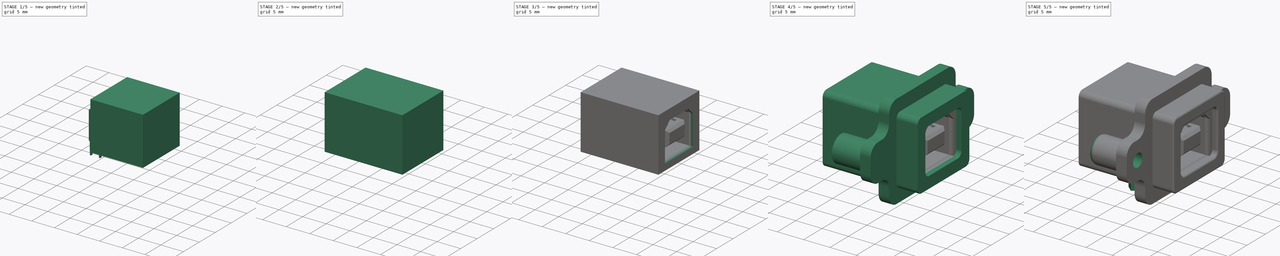
[diagram: build sequence overview — one tinted view per stage of 5, left to right]
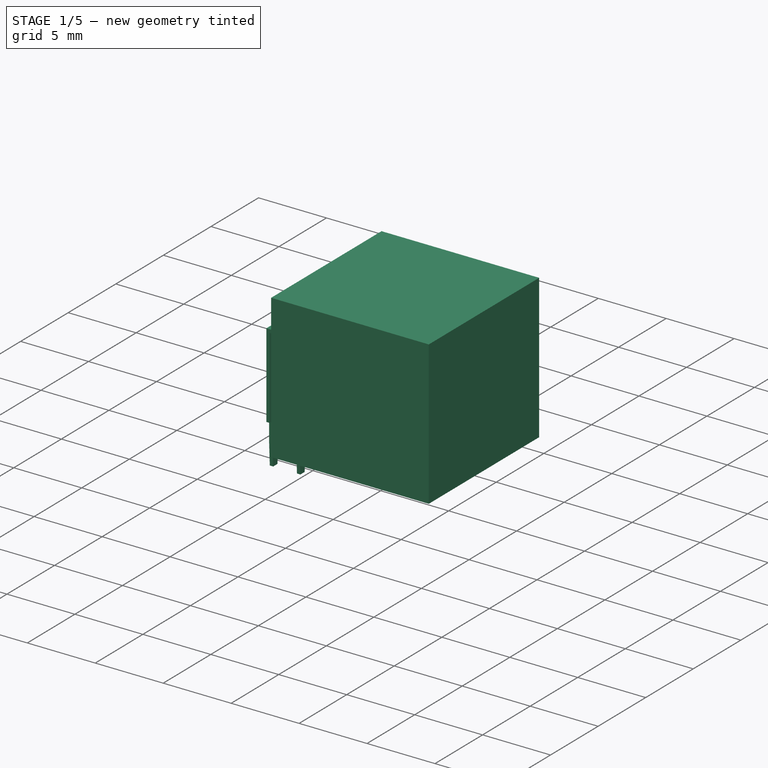
[diagram: stage 1 of 5 — iso view after this stage's code; geometry added in this stage tinted green]
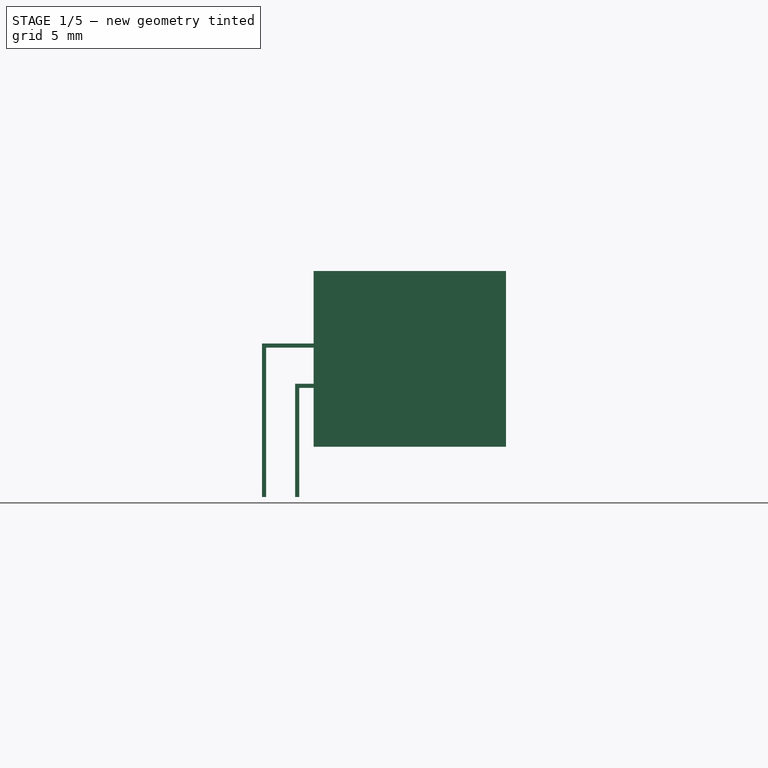
[diagram: stage 1 of 5 — front view after this stage's code; geometry added in this stage tinted green]
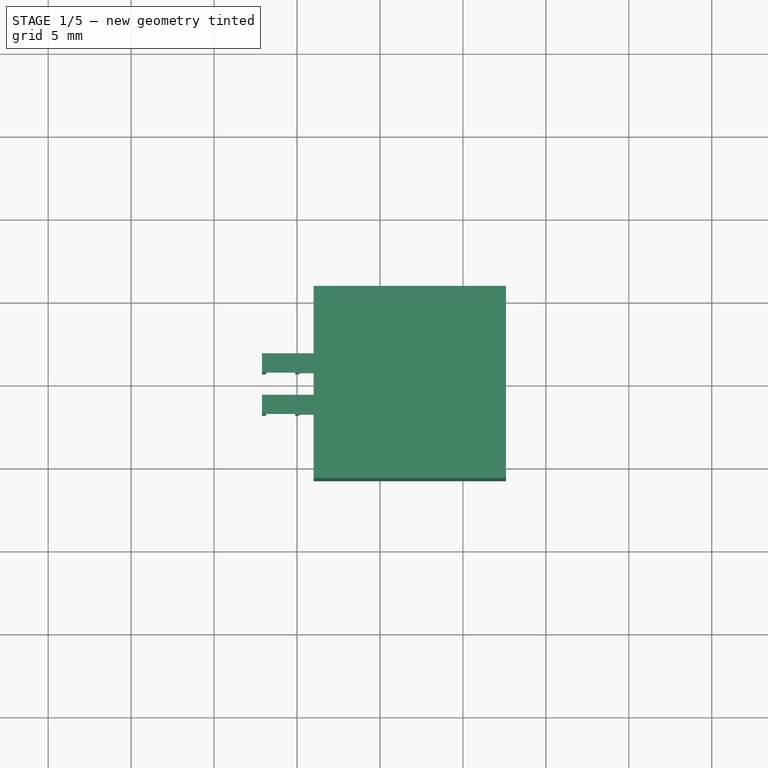
[diagram: stage 1 of 5 — top view after this stage's code; geometry added in this stage tinted green]
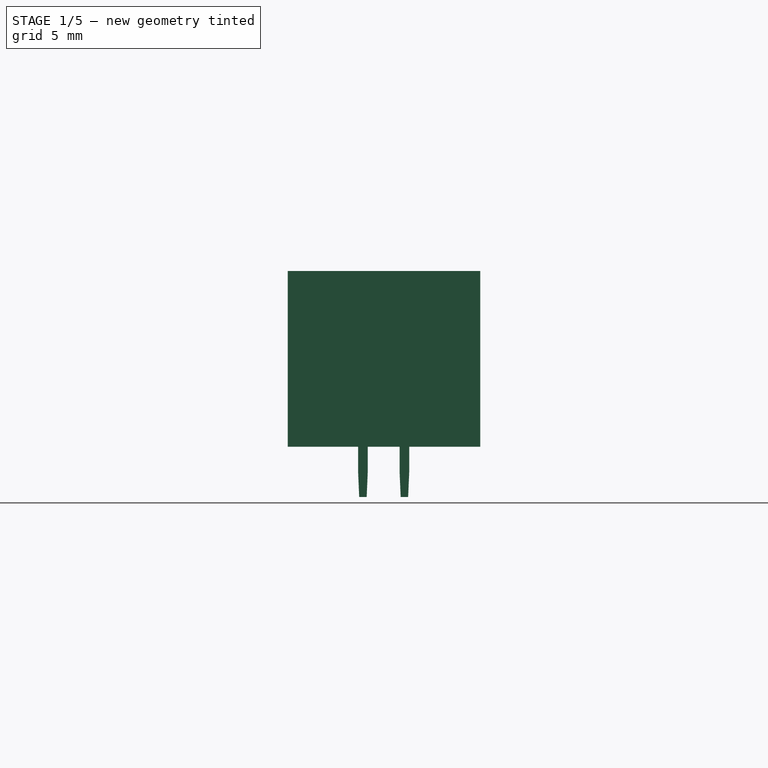
[diagram: stage 1 of 5 — right view after this stage's code; geometry added in this stage tinted green]
FCSTD DOCUMENT  (FreeCAD 1.0R38641 +468 (Git))
Label: MUSB-D111-M1
License: All rights reserved
objects: Sketcher::SketchObject×17, PartDesign::Pocket×10, PartDesign::Pad×8, PartDesign::Body×4, PartDesign::Line×3, PartDesign::Fillet×2, PartDesign::Mirrored×2, Spreadsheet::Sheet×1, PartDesign::Chamfer×1, Part::FeaturePython×1
note: 109 computed .brp shape members not serialized (recipe doc carries the construction recipe); baked Part::Feature solids carry a one-line shape summary decoded from their .brp

FEATURE [PartDesign::Body] Body001  label="Housing"
  AllowCompound = false
  Group = -> [DatumLine001,Sketch009,Pad004,Sketch010,Pocket004,Sketch011,Pocket005,Sketch012,Pocket006,Pad005]
  Origin = -> Origin001
  Tip = -> Pad005
FEATURE [PartDesign::Line] DatumLine002
  AttacherType = Attacher::AttachEngineLine
  AttachmentOffset = pos=(0,6.5,0) rot=(0,0,1;0rad)
  AttachmentSupport = -> [X_Axis002]
  Length = 20
  MapMode = 29
  Placement = pos=(0,0,6.5) rot=(0.57735,0.57735,0.57735;2.0944rad)
  ResizeMode = 0
  expr: .AttachmentOffset.Base.y = <<Master>>.center
FEATURE [Sketcher::SketchObject] Sketch013
  ArcFitTolerance = 0
  AttachmentSupport = -> [YZ_Plane002]
  ExternalGeometry = -> [DatumLine002]
  FullyConstrained = true
  MakeInternals = false
  MapMode = 5
  Placement = pos=(0,0,0) rot=(0.57735,0.57735,0.57735;2.0944rad)
  sketch-geometry (6):
    g0: LineSegment StartX=-5.8 StartY=11.8 StartZ=0 EndX=5.8 EndY=11.8 EndZ=0
    g1: LineSegment StartX=5.8 StartY=11.8 StartZ=0 EndX=5.8 EndY=1.2 EndZ=0
    g2: LineSegment StartX=5.8 StartY=1.2 StartZ=0 EndX=-5.8 EndY=1.2 EndZ=0
    g3: LineSegment StartX=-5.8 StartY=1.2 StartZ=0 EndX=-5.8 EndY=11.8 EndZ=0
    g4: LineSegment [constr] StartX=-5.8 StartY=1.2 StartZ=0 EndX=0 EndY=6.5 EndZ=0
    g5: LineSegment [constr] StartX=0 StartY=6.5 StartZ=0 EndX=5.8 EndY=11.8 EndZ=0
  constraints (16):
    c: Coincident(g0,g1)
    c: Coincident(g1,g2)
    c: Coincident(g2,g3)
    c: Coincident(g3,g0)
    c: Horizontal(g0)
    c: Horizontal(g2)
    c: Vertical(g1)
    c: Vertical(g3)
    c: DistanceX(g2,g2) = 11.6
    c: DistanceY(g1,g1) = 10.6
    c: Coincident(g4,g2)
    c: Coincident(g4,g-3)
    c: Coincident(g5,g4)
    c: Coincident(g5,g0)
    c: Equal(g5,g4)
    c: Parallel(g5,g4)
FEATURE [PartDesign::Pad] Pad006
  Direction = (1,0,0)
  Length = 2.6
  Length2 = 9
  Placement = pos=(0,0,0) rot=(1,1,1;2.0944rad)
  Profile = -> Sketch013
  ReferenceAxis = -> Sketch013 [N_Axis]
  Suppressed = false
  Type = 4
  expr: Length = <<Master>>.i_front
  expr: Length2 = <<Master>>.i_back
FEATURE [PartDesign::Body] Body002  label="Insert"
  AllowCompound = false
  Group = -> [DatumLine002,Sketch013,Pad006,Sketch014,Pocket007,Sketch016,Pocket008,Mirrored,Chamfer]
  Origin = -> Origin002
  Tip = -> Chamfer
FEATURE [Sketcher::SketchObject] Sketch017
  ArcFitTolerance = 0
  AttachmentSupport = -> [XZ_Plane003]
  FullyConstrained = true
  MakeInternals = false
  MapMode = 5
  Placement = pos=(0,0,0) rot=(1,0,0;1.5708rad)
  expr: Constraints[106] = <<Master>>.i_pin_z - 1 mm
  expr: Constraints[140] = <<Master>>.i_back - 1 mm
  expr: Constraints[141] = <<Master>>.plug_center
  sketch-geometry (51):
    g0: LineSegment StartX=-9.865 StartY=-1.83 StartZ=0 EndX=-10.115 EndY=-1.83 EndZ=0
    g1: LineSegment StartX=-10.115 StartY=-1.83 StartZ=0 EndX=-10.115 EndY=5 EndZ=0
    g2: LineSegment StartX=-10.115 StartY=5 StartZ=0 EndX=-8 EndY=5 EndZ=0
    g3: LineSegment StartX=1.1 StartY=5 StartZ=0 EndX=1.1 EndY=4.75 EndZ=0
    g4: LineSegment StartX=1.1 StartY=4.75 StartZ=0 EndX=0.495 EndY=4.75 EndZ=0
    g5: LineSegment StartX=-9.865 StartY=4.75 StartZ=0 EndX=-9.865 EndY=-1.83 EndZ=0
    g6: LineSegment StartX=-3.835 StartY=4.75 StartZ=0 EndX=-0.625 EndY=4.0605 EndZ=0
    g7: LineSegment StartX=-0.625 StartY=4.0605 StartZ=0 EndX=0.495 EndY=4.75 EndZ=0
    g8: LineSegment StartX=-3.835 StartY=4.75 StartZ=0 EndX=-9.865 EndY=4.75 EndZ=0
    g9: LineSegment StartX=-3.80845 StartY=5 StartZ=0 EndX=-0.670608 EndY=4.326 EndZ=0
    g10: LineSegment StartX=-0.670608 StartY=4.326 StartZ=0 EndX=0.424216 EndY=5 EndZ=0
    g11: LineSegment StartX=0.424216 StartY=5 StartZ=0 EndX=1.1 EndY=5 EndZ=0
    g12: LineSegment StartX=1.1 StartY=7.43 StartZ=0 EndX=0.495 EndY=7.43 EndZ=0
    g13: LineSegment StartX=0.495 StartY=7.43 StartZ=0 EndX=-0.625 EndY=8.1195 EndZ=0
    g14: LineSegment StartX=-0.625 StartY=8.1195 StartZ=0 EndX=-3.835 EndY=7.43 EndZ=0
    g15: LineSegment StartX=-3.835 StartY=7.43 StartZ=0 EndX=-12.115 EndY=7.43 EndZ=0
    g16: LineSegment StartX=-12.115 StartY=7.43 StartZ=0 EndX=-12.115 EndY=-1.83 EndZ=0
    g17: LineSegment StartX=-12.115 StartY=-1.83 StartZ=0 EndX=-11.865 EndY=-1.83 EndZ=0
    g18: LineSegment StartX=-11.865 StartY=-1.83 StartZ=0 EndX=-11.865 EndY=7.18 EndZ=0
    g19: LineSegment StartX=-11.865 StartY=7.18 StartZ=0 EndX=-8 EndY=7.18 EndZ=0
    g20: LineSegment StartX=-3.80845 StartY=7.18 StartZ=0 EndX=-0.670608 EndY=7.854 EndZ=0
    g21: LineSegment StartX=-0.670608 StartY=7.854 StartZ=0 EndX=0.424216 EndY=7.18 EndZ=0
    g22: LineSegment StartX=0.424216 StartY=7.18 StartZ=0 EndX=1.1 EndY=7.18 EndZ=0
    g23: LineSegment StartX=1.1 StartY=7.18 StartZ=0 EndX=1.1 EndY=7.43 EndZ=0
    g24: LineSegment [constr] StartX=-3.835 StartY=7.43 StartZ=0 EndX=-3.7825 EndY=7.18558 EndZ=0
    g25: LineSegment [constr] StartX=0.495 StartY=7.43 StartZ=0 EndX=0.363939 EndY=7.21711 EndZ=0
    g26: LineSegment [constr] StartX=0.495 StartY=4.75 StartZ=0 EndX=0.363939 EndY=4.96289 EndZ=0
    g27: LineSegment [constr] StartX=-3.835 StartY=4.75 StartZ=0 EndX=-3.7825 EndY=4.99442 EndZ=0
    g28: LineSegment [constr] StartX=1.1 StartY=7.18 StartZ=0 EndX=1.1 EndY=6.09 EndZ=0
    g29: LineSegment [constr] StartX=1.1 StartY=6.09 StartZ=0 EndX=1.1 EndY=5 EndZ=0
    g30: LineSegment [constr] StartX=-0.670608 StartY=7.854 StartZ=0 EndX=-0.670608 EndY=6.09 EndZ=0
    g31: LineSegment [constr] StartX=-0.670608 StartY=6.09 StartZ=0 EndX=-0.670608 EndY=4.326 EndZ=0
    g32: LineSegment [constr] StartX=-3.80845 StartY=7.18 StartZ=0 EndX=-3.80845 EndY=6.09 EndZ=0
    g33: LineSegment [constr] StartX=-3.80845 StartY=6.09 StartZ=0 EndX=-3.80845 EndY=5 EndZ=0
    g34: LineSegment [constr] StartX=-9.865 StartY=4.75 StartZ=0 EndX=-9.865 EndY=5 EndZ=0
    g35: LineSegment [constr] StartX=-11.865 StartY=7.18 StartZ=0 EndX=-11.865 EndY=7.43 EndZ=0
    g36: LineSegment [constr] StartX=1.1 StartY=6.09 StartZ=0 EndX=-0.670608 EndY=6.09 EndZ=0
    g37: LineSegment [constr] StartX=-0.670608 StartY=6.09 StartZ=0 EndX=-3.80845 EndY=6.09 EndZ=0
    g38: LineSegment [constr] StartX=-10.115 StartY=-1.83 StartZ=0 EndX=-11.865 EndY=-1.83 EndZ=0
    g39: LineSegment [constr] StartX=-9.865 StartY=0 StartZ=0 EndX=-9.99 EndY=0 EndZ=0
    g40: LineSegment [constr] StartX=-9.99 StartY=0 StartZ=0 EndX=-10.115 EndY=0 EndZ=0
    g41: LineSegment [constr] StartX=0.424216 StartY=7.18 StartZ=0 EndX=0.424216 EndY=6.09 EndZ=0
    g42: LineSegment [constr] StartX=0.424216 StartY=5 StartZ=0 EndX=0.424216 EndY=6.09 EndZ=0
    g43: LineSegment [constr] StartX=-3.80845 StartY=7.18 StartZ=0 EndX=0.424216 EndY=7.18 EndZ=0
    g44: LineSegment [constr] StartX=-3.80845 StartY=5 StartZ=0 EndX=0.424216 EndY=5 EndZ=0
    g45: LineSegment StartX=-8 StartY=7.18 StartZ=0 EndX=-8 EndY=5 EndZ=0
    g46: LineSegment StartX=-7.75 StartY=7.18 StartZ=0 EndX=-7.75 EndY=5 EndZ=0
    g47: LineSegment StartX=-7.75 StartY=5 StartZ=0 EndX=-3.80845 EndY=5 EndZ=0
    g48: LineSegment StartX=-7.75 StartY=7.18 StartZ=0 EndX=-3.80845 EndY=7.18 EndZ=0
    g49: LineSegment [constr] StartX=-8 StartY=7.18 StartZ=0 EndX=-7.75 EndY=7.18 EndZ=0
    g50: LineSegment [constr] StartX=-8 StartY=5 StartZ=0 EndX=-7.75 EndY=5 EndZ=0
  constraints (143):
    c: Horizontal(g0)
    c: Coincident(g0,g1)
    c: Vertical(g1)
    c: Horizontal(g2)
    c: Coincident(g11,g3)
    c: Coincident(g3,g4)
    c: Horizontal(g4)
    c: Coincident(g8,g5)
    c: Vertical(g5)
    c: Coincident(g5,g0)
    c: Vertical(g3)
    c: Equal(g0,g3)
    c: Coincident(g6,g7)
    c: Coincident(g4,g7)
    c: Coincident(g8,g6)
    c: Tangent(g4,g8)
    c: Coincident(g9,g10)
    c: Coincident(g47,g9)
    c: Coincident(g11,g10)
    c: Tangent(g2,g11)
    c: Parallel(g9,g6)
    c: Parallel(g10,g7)
    c: Coincident(g12,g13)
    c: Coincident(g13,g14)
    c: Coincident(g14,g15)
    c: Horizontal(g15)
    c: Coincident(g15,g16)
    c: Vertical(g16)
    c: Coincident(g16,g17)
    c: Coincident(g17,g18)
    c: Vertical(g18)
    c: Horizontal(g19)
    c: Coincident(g48,g20)
    c: Coincident(g20,g21)
    c: Coincident(g21,g22)
    c: Coincident(g22,g23)
    c: Coincident(g23,g12)
    c: Vertical(g23)
    c: Equal(g23,g3)
    c: Horizontal(g22)
    c: Horizontal(g12)
    c: Horizontal(g17)
    c: Equal(g0,g17)
    c: Parallel(g20,g14)
    c: Parallel(g13,g21)
    c: Coincident(g24,g14)
    c: PointOnObject(g24,g20)
    c: Perpendicular(g14,g24)
    c: Equal(g24,g23)
    c: Coincident(g25,g12)
    c: PointOnObject(g25,g21)
    c: Perpendicular(g13,g25)
    c: Equal(g25,g23)
    c: Coincident(g26,g4)
    c: PointOnObject(g26,g10)
    c: Perpendicular(g7,g26)
    c: Equal(g26,g3)
    c: Coincident(g27,g6)
    c: PointOnObject(g27,g9)
    c: Perpendicular(g6,g27)
    c: Equal(g27,g26)
    c: Coincident(g22,g28)
    c: Vertical(g28)
    c: Coincident(g28,g29)
    c: Coincident(g29,g3)
    c: Vertical(g29)
    c: Equal(g29,g28)
    c: Coincident(g30,g20)
    c: Vertical(g30)
    c: Coincident(g31,g30)
    c: Coincident(g31,g9)
    c: Vertical(g31)
    c: Equal(g31,g30)
    c: Coincident(g48,g32)
    c: Vertical(g32)
    c: Coincident(g32,g33)
    c: Coincident(g33,g47)
    c: Vertical(g33)
    c: Equal(g33,g32)
    c: Coincident(g34,g5)
    c: Vertical(g34)
    c: PointOnObject(g35,g15)
    c: Vertical(g35)
    c: Equal(g34,g35)
    c: Coincident(g36,g28)
    c: Coincident(g36,g30)
    c: Horizontal(g36)
    c: Coincident(g37,g30)
    c: Coincident(g37,g32)
    c: Horizontal(g37)
    c: Coincident(g38,g0)
    c: Coincident(g38,g17)
    c: Horizontal(g38)
    c: PointOnObject(g39,g5)
    c: Horizontal(g39)
    c: Coincident(g39,g40)
    c: PointOnObject(g40,g1)
    c: Horizontal(g40)
    c: Equal(g39,g40)
    c: Coincident(g41,g21)
    c: Vertical(g41)
    c: Coincident(g42,g10)
    c: Coincident(g42,g41)
    c: Vertical(g42)
    c: Equal(g41,g42)
    c: DistanceY(g0,g39) = 1.83
    c: DistanceY(g3,g22) = 2.18
    c: DistanceX(g17,g17) = 0.25
    c: DistanceX(g16,g0) = 2
    c: DistanceX(g15,g15) = 8.28
    c: DistanceX(g15,g13) = 11.49
    c: DistanceX(g15,g12) = 12.61
    c: PointOnObject(g39,g-1)
    c: DistanceX(g39,g-1) = 9.99
    c: Coincident(g43,g48)
    c: Coincident(g43,g21)
    c: Coincident(g44,g47)
    c: Coincident(g44,g10)
    c: DistanceY(g30,g30) = 1.764
    c: PointOnObject(g34,g2)
    c: Coincident(g2,g1)
    c: Coincident(g18,g19)
    c: Vertical(g45)
    c: PointOnObject(g46,g48)
    c: PointOnObject(g46,g47)
    c: Vertical(g46)
    c: Coincident(g2,g45)
    c: PointOnObject(g47,g46)
    c: Horizontal(g47)
    c: Coincident(g19,g45)
    c: PointOnObject(g48,g46)
    c: Coincident(g49,g19)
    c: Coincident(g49,g46)
    c: Horizontal(g49)
    c: Coincident(g50,g2)
    c: Coincident(g50,g46)
    c: Horizontal(g50)
    c: Horizontal(g48)
    c: Coincident(g35,g18)
    c: Equal(g49,g35)
    c: DistanceX(g2,g-1) = 8
    c: DistanceY(g-1,g28) = 6.09
    c: DistanceX(g-1,g3) = 1.1
FEATURE [PartDesign::Pad] Pad007
  Direction = (0,-1,2e-16)
  Length = 1.16
  Length2 = 10
  Midplane = true
  Placement = pos=(0,0,0) rot=(1,0,0;1.5708rad)
  Profile = -> Sketch017
  ReferenceAxis = -> Sketch017 [N_Axis]
  Suppressed = false
  Type = 0
FEATURE [Sketcher::SketchObject] Sketch019
  ArcFitTolerance = 0
  AttachmentSupport = -> [YZ_Plane003]
  FullyConstrained = true
  MakeInternals = false
  MapMode = 5
  Placement = pos=(0,0,0) rot=(0.57735,0.57735,0.57735;2.0944rad)
  sketch-geometry (5):
    g0: LineSegment StartX=-0.225 StartY=-1.83 StartZ=0 EndX=-0.29 EndY=-0.33 EndZ=0
    g1: LineSegment StartX=-0.29 StartY=-0.33 StartZ=0 EndX=-0.29 EndY=1.2 EndZ=0
    g2: LineSegment StartX=-0.29 StartY=1.2 StartZ=0 EndX=-0.58 EndY=1.2 EndZ=0
    g3: LineSegment StartX=-0.58 StartY=1.2 StartZ=0 EndX=-0.58 EndY=-1.83 EndZ=0
    g4: LineSegment StartX=-0.58 StartY=-1.83 StartZ=0 EndX=-0.225 EndY=-1.83 EndZ=0
  constraints (15):
    c: Coincident(g0,g1)
    c: Vertical(g1)
    c: Coincident(g1,g2)
    c: Coincident(g2,g3)
    c: Vertical(g3)
    c: Coincident(g3,g4)
    c: Coincident(g4,g0)
    c: Horizontal(g2)
    c: Horizontal(g4)
    c: Distance(g2,g2) = 0.29
    c: Distance(g4,g4) = 0.355
    c: DistanceY(g0,g0) = 1.5
    c: DistanceY(g-1,g1) = 1.2
    c: DistanceY(g0,g-1) = 1.83
    c: DistanceX(g3,g-1) = 0.58
FEATURE [PartDesign::Pocket] Pocket009
  BaseFeature = -> Pad007
  Direction = (-1,0,0)
  Length = 5
  Length2 = 5
  Placement = pos=(0,0,0) rot=(1,0,0;1.5708rad)
  Profile = -> Sketch019
  ReferenceAxis = -> Sketch019 [N_Axis]
  Suppressed = false
  Type = 1
FEATURE [PartDesign::Mirrored] Mirrored001
  BaseFeature = -> Pocket009
  MirrorPlane = -> Sketch019 [V_Axis]
  Originals = -> [Pocket009]
  Placement = pos=(0,0,0) rot=(1,0,0;1.5708rad)
  Suppressed = false
  TransformMode = 0
FEATURE [PartDesign::Body] Body003
  AllowCompound = false
  Group = -> [Sketch017,Pad007,Sketch019,Pocket009,Mirrored001]
  Origin = -> Origin003
  Tip = -> Mirrored001
FEATURE [Part::FeaturePython] Array  label="Pins"  # Draft array (typed FeaturePython)
  Angle = 360
  ArrayType = 0
  Axis = (0,0,1)
  Base = -> Body003
  Center = (0,0,0)
  Count = 2
  Fuse = false
  IntervalAxis = (0,0,0)
  IntervalX = (2,0,0)
  IntervalY = (0,2.5,0)
  IntervalZ = (0,0,100)
  NumberCircles = 3
  NumberPolar = 5
  NumberX = 1
  NumberY = 2
  NumberZ = 1
  Placement = pos=(0,-1.27,0) rot=(0,0,1;0rad)
  RadialDistance = 50
  Symmetry = 1
  TangentialDistance = 25
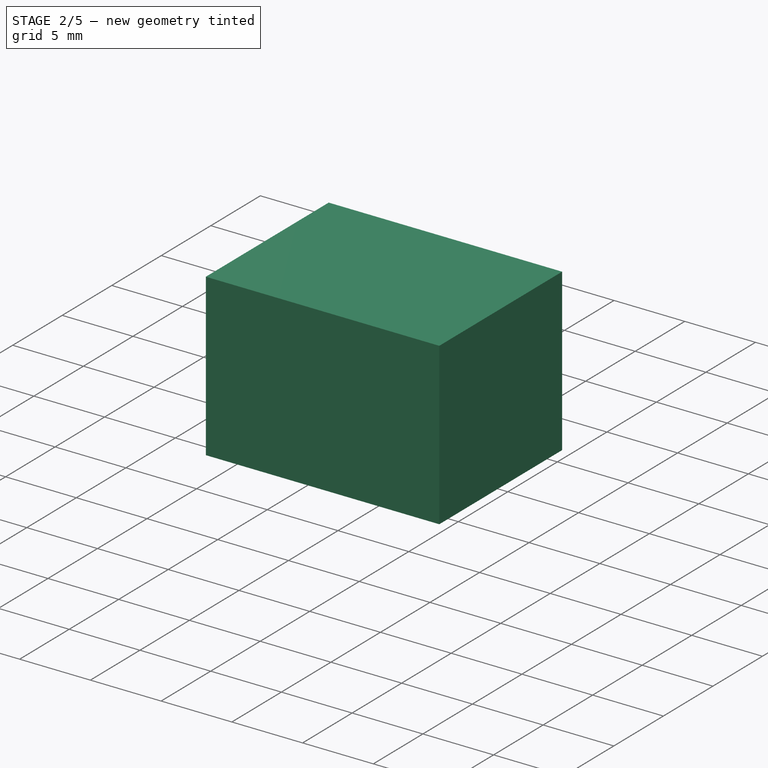
[diagram: stage 2 of 5 — iso view after this stage's code; geometry added in this stage tinted green]
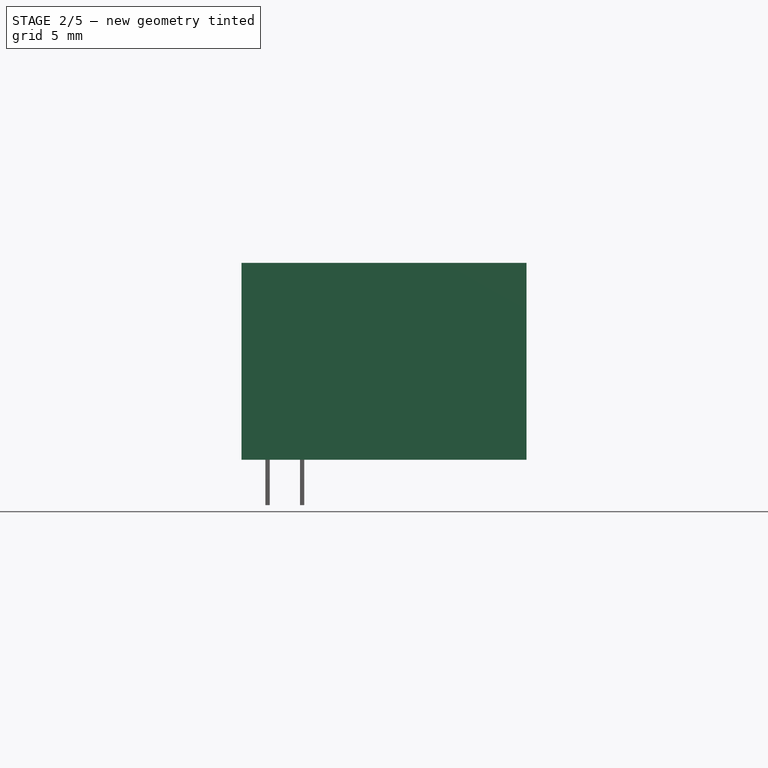
[diagram: stage 2 of 5 — front view after this stage's code; geometry added in this stage tinted green]
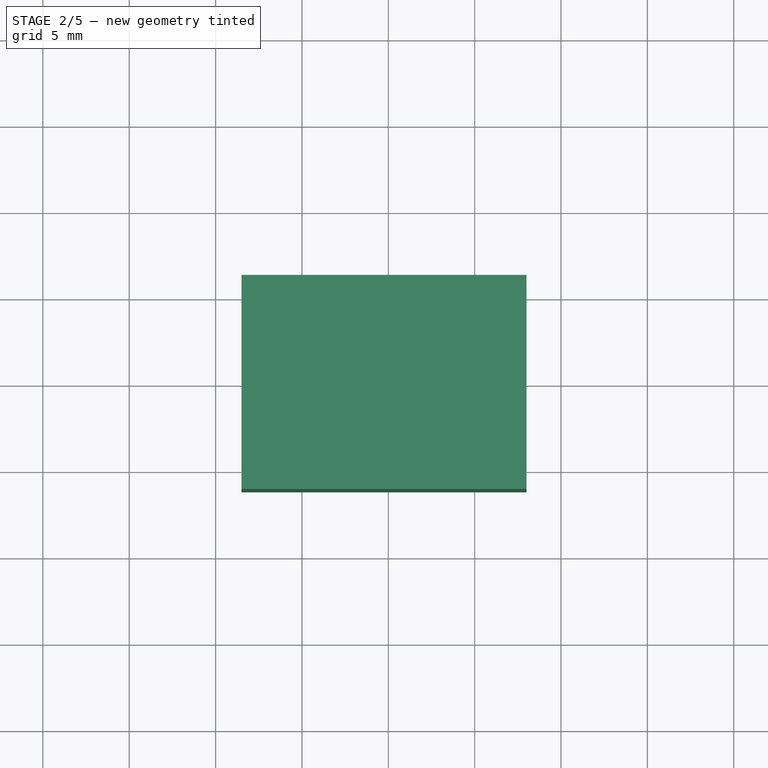
[diagram: stage 2 of 5 — top view after this stage's code; geometry added in this stage tinted green]
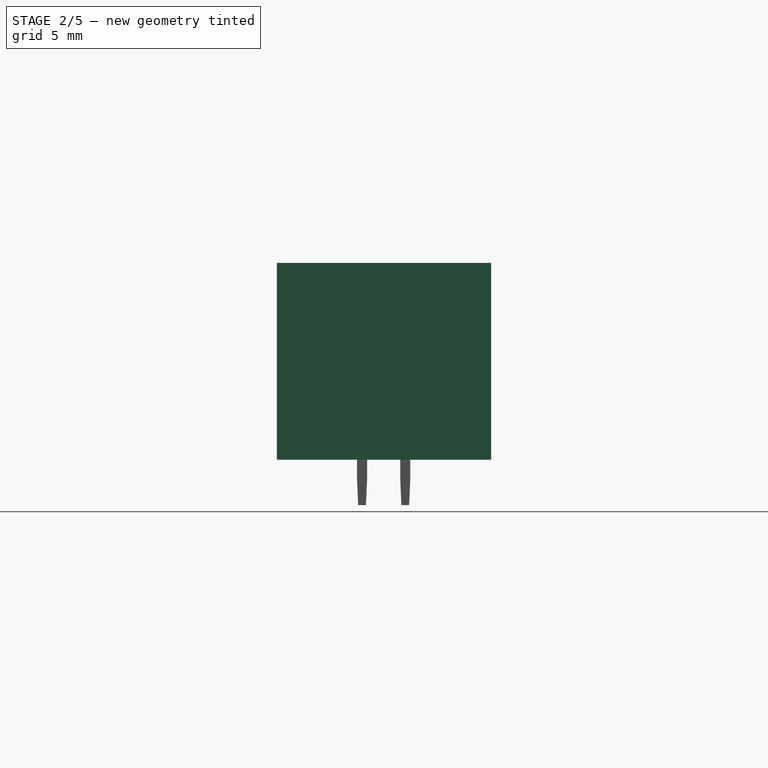
[diagram: stage 2 of 5 — right view after this stage's code; geometry added in this stage tinted green]
FEATURE [PartDesign::Body] Body
  AllowCompound = false
  Group = -> [DatumLine,Sketch,Pad,Sketch001,Pad001,Sketch002,Pocket,Sketch003,Pocket001,Sketch005,Pad002,Sketch006,Pocket002,Sketch007,Pad003,Sketch008,Pocket003,Fillet,Fillet001]
  Origin = -> Origin
  Tip = -> Fillet001
FEATURE [PartDesign::Line] DatumLine001
  AttacherType = Attacher::AttachEngineLine
  AttachmentOffset = pos=(0,6.5,0) rot=(0,0,1;0rad)
  AttachmentSupport = -> [X_Axis001]
  Length = 20
  MapMode = 29
  Placement = pos=(0,0,6.5) rot=(0.57735,0.57735,0.57735;2.0944rad)
  ResizeMode = 0
  expr: .AttachmentOffset.Base.y = <<Master>>.center
FEATURE [Sketcher::SketchObject] Sketch009
  ArcFitTolerance = 0
  AttachmentOffset = pos=(0,0,-13.5) rot=(0,0,1;0rad)
  AttachmentSupport = -> [YZ_Plane001]
  ExternalGeometry = -> [DatumLine001]
  FullyConstrained = true
  MakeInternals = false
  MapMode = 5
  Placement = pos=(-13.5,0,0) rot=(0.57735,0.57735,0.57735;2.0944rad)
  expr: .AttachmentOffset.Base.z = -<<Master>>.h_back
  sketch-geometry (6):
    g0: LineSegment StartX=-6.2 StartY=12.2 StartZ=0 EndX=6.2 EndY=12.2 EndZ=0
    g1: LineSegment StartX=6.2 StartY=12.2 StartZ=0 EndX=6.2 EndY=0.8 EndZ=0
    g2: LineSegment StartX=6.2 StartY=0.8 StartZ=0 EndX=-6.2 EndY=0.8 EndZ=0
    g3: LineSegment StartX=-6.2 StartY=0.8 StartZ=0 EndX=-6.2 EndY=12.2 EndZ=0
    g4: LineSegment [constr] StartX=-6.2 StartY=0.8 StartZ=0 EndX=0 EndY=6.5 EndZ=0
    g5: LineSegment [constr] StartX=6.2 StartY=12.2 StartZ=0 EndX=0 EndY=6.5 EndZ=0
  constraints (16):
    c: Coincident(g0,g1)
    c: Coincident(g1,g2)
    c: Coincident(g2,g3)
    c: Coincident(g3,g0)
    c: Horizontal(g0)
    c: Vertical(g1)
    c: Vertical(g3)
    c: Horizontal(g2)
    c: Coincident(g4,g2)
    c: Coincident(g4,g-3)
    c: Coincident(g5,g0)
    c: Coincident(g5,g4)
    c: Equal(g5,g4)
    c: Parallel(g5,g4)
    c: DistanceY(g3,g3) = 11.4
    c: DistanceX(g2,g2) = 12.4
FEATURE [PartDesign::Pad] Pad004
  Direction = (1,0,0)
  Length = 16.5
  Length2 = 10
  Placement = pos=(0,0,0) rot=(1,1,1;2.0944rad)
  Profile = -> Sketch009
  ReferenceAxis = -> Sketch009 [N_Axis]
  Suppressed = false
  Type = 0
  expr: Length = <<Master>>.h_len
FEATURE [Sketcher::SketchObject] Sketch014
  ArcFitTolerance = 0
  AttachmentOffset = pos=(0,0,2.6) rot=(0,0,1;0rad)
  AttachmentSupport = -> [YZ_Plane002]
  ExternalGeometry = -> [DatumLine002]
  FullyConstrained = true
  MakeInternals = false
  MapMode = 5
  Placement = pos=(2.6,0,0) rot=(0.57735,0.57735,0.57735;2.0944rad)
  expr: .AttachmentOffset.Base.z = <<Master>>.i_front
  expr: Constraints[25] = <<Master>>.i_pin_z
  expr: Constraints[26] = <<Master>>.i_pin_y
  sketch-geometry (14):
    g0: LineSegment StartX=-2.8 StartY=9.98 StartZ=0 EndX=2.8 EndY=9.98 EndZ=0
    g1: LineSegment StartX=2.8 StartY=9.98 StartZ=0 EndX=4.225 EndY=8.555 EndZ=0
    g2: LineSegment StartX=4.225 StartY=8.555 StartZ=0 EndX=4.225 EndY=2.2 EndZ=0
    g3: LineSegment StartX=4.225 StartY=2.2 StartZ=0 EndX=-4.225 EndY=2.2 EndZ=0
    g4: LineSegment StartX=-4.225 StartY=2.2 StartZ=0 EndX=-4.225 EndY=8.555 EndZ=0
    g5: LineSegment StartX=-4.225 StartY=8.555 StartZ=0 EndX=-2.8 EndY=9.98 EndZ=0
    g6: LineSegment StartX=-2.8 StartY=7.68 StartZ=0 EndX=-2.8 EndY=4.5 EndZ=0
    g7: LineSegment StartX=-2.8 StartY=4.5 StartZ=0 EndX=2.8 EndY=4.5 EndZ=0
    g8: LineSegment StartX=2.8 StartY=4.5 StartZ=0 EndX=2.8 EndY=7.68 EndZ=0
    g9: LineSegment StartX=2.8 StartY=7.68 StartZ=0 EndX=-2.8 EndY=7.68 EndZ=0
    g10: LineSegment [constr] StartX=-2.8 StartY=4.5 StartZ=0 EndX=0 EndY=6.09 EndZ=0
    g11: LineSegment [constr] StartX=0 StartY=6.09 StartZ=0 EndX=2.8 EndY=7.68 EndZ=0
    g12: LineSegment [constr] StartX=0 StartY=9.98 StartZ=0 EndX=0 EndY=6.09 EndZ=0
    g13: LineSegment [constr] StartX=0 StartY=6.09 StartZ=0 EndX=0 EndY=2.2 EndZ=0
  constraints (41):
    c: Horizontal(g0)
    c: Coincident(g0,g1)
    c: Coincident(g1,g2)
    c: Vertical(g2)
    c: Coincident(g2,g3)
    c: Coincident(g3,g4)
    c: Vertical(g4)
    c: Coincident(g4,g5)
    c: Coincident(g5,g0)
    c: DistanceY(g-1,g3) = 2.2
    c: DistanceY(g3,g0) = 7.78
    c: Symmetric(g3,g2,g-2)
    c: Equal(g5,g1)
    c: Angle(g5) = 0.785398
    c: Equal(g4,g2)
    c: DistanceX(g0) = 5.6
    c: DistanceX(g3,g3) = 8.45
    c: Coincident(g6,g7)
    c: Coincident(g7,g8)
    c: Coincident(g8,g9)
    c: Coincident(g9,g6)
    c: Vertical(g6)
    c: Vertical(g8)
    c: Horizontal(g7)
    c: Horizontal(g9)
    c: DistanceY(g8,g8) = 3.18
    c: DistanceX(g9,g9) = 5.6
    c: Coincident(g10,g6)
    c: Coincident(g11,g10)
    c: Coincident(g11,g8)
    c: Equal(g10,g11)
    c: Parallel(g10,g11)
    c: PointOnObject(g12,g0)
    c: Coincident(g12,g10)
    c: Coincident(g13,g10)
    c: PointOnObject(g13,g3)
    c: Equal(g12,g13)
    c: Vertical(g12)
    c: Vertical(g13)
    c: PointOnObject(g10,g-2)
    c: DistanceY(g10,g-3) = 0.41
FEATURE [PartDesign::Pocket] Pocket007
  BaseFeature = -> Pad006
  Direction = (-1,0,0)
  Length = 8.38
  Length2 = 5
  Placement = pos=(0,0,0) rot=(1,1,1;2.0944rad)
  Profile = -> Sketch014
  ReferenceAxis = -> Sketch014 [N_Axis]
  Suppressed = false
  Type = 0
FEATURE [Sketcher::SketchObject] Sketch016
  ArcFitTolerance = 0
  AttachmentOffset = pos=(0,0,-9) rot=(0,0,1;0rad)
  AttachmentSupport = -> [YZ_Plane002]
  FullyConstrained = true
  MakeInternals = false
  MapMode = 5
  Placement = pos=(-9,0,0) rot=(0.57735,0.57735,0.57735;2.0944rad)
  expr: .AttachmentOffset.Base.z = -<<Master>>.i_back
  expr: Constraints[43] = <<Master>>.i_pin_z
  expr: Constraints[44] = <<Master>>.plug_center
  sketch-geometry (16):
    g0: LineSegment StartX=-2.07 StartY=8.18 StartZ=0 EndX=-0.47 EndY=8.18 EndZ=0
    g1: LineSegment StartX=-0.47 StartY=8.18 StartZ=0 EndX=-0.47 EndY=7.18 EndZ=0
    g2: LineSegment StartX=-0.47 StartY=7.18 StartZ=0 EndX=-2.07 EndY=7.18 EndZ=0
    g3: LineSegment StartX=-2.07 StartY=7.18 StartZ=0 EndX=-2.07 EndY=8.18 EndZ=0
    g4: LineSegment StartX=-2.07 StartY=5 StartZ=0 EndX=-0.47 EndY=5 EndZ=0
    g5: LineSegment StartX=-0.47 StartY=5 StartZ=0 EndX=-0.47 EndY=4 EndZ=0
    g6: LineSegment StartX=-0.47 StartY=4 StartZ=0 EndX=-2.07 EndY=4 EndZ=0
    g7: LineSegment StartX=-2.07 StartY=4 StartZ=0 EndX=-2.07 EndY=5 EndZ=0
    g8: LineSegment [constr] StartX=-2.07 StartY=8.18 StartZ=0 EndX=-1.27 EndY=7.68 EndZ=0
    g9: LineSegment [constr] StartX=-1.27 StartY=7.68 StartZ=0 EndX=-0.47 EndY=7.18 EndZ=0
    g10: LineSegment [constr] StartX=-1.27 StartY=7.68 StartZ=0 EndX=0 EndY=7.68 EndZ=0
    g11: LineSegment [constr] StartX=-2.07 StartY=5 StartZ=0 EndX=-1.27 EndY=4.5 EndZ=0
    g12: LineSegment [constr] StartX=-1.27 StartY=4.5 StartZ=0 EndX=-0.47 EndY=4 EndZ=0
    g13: LineSegment [constr] StartX=-1.27 StartY=4.5 StartZ=0 EndX=0 EndY=4.5 EndZ=0
    g14: LineSegment [constr] StartX=-1.27 StartY=7.68 StartZ=0 EndX=-1.27 EndY=6.09 EndZ=0
    g15: LineSegment [constr] StartX=-1.27 StartY=6.09 StartZ=0 EndX=-1.27 EndY=4.5 EndZ=0
  constraints (45):
    c: Coincident(g0,g1)
    c: Coincident(g1,g2)
    c: Coincident(g2,g3)
    c: Coincident(g3,g0)
    c: Horizontal(g0)
    c: Horizontal(g2)
    c: Vertical(g1)
    c: Vertical(g3)
    c: Coincident(g4,g5)
    c: Coincident(g5,g6)
    c: Coincident(g6,g7)
    c: Coincident(g7,g4)
    c: Horizontal(g4)
    c: Horizontal(g6)
    c: Vertical(g5)
    c: Vertical(g7)
    c: DistanceX(g0) = 1.6
    c: DistanceY(g3) = 1
    c: Equal(g0,g4)
    c: Equal(g7,g3)
    c: Coincident(g8,g0)
    c: Coincident(g9,g8)
    c: Coincident(g9,g1)
    c: Parallel(g9,g8)
    c: Equal(g9,g8)
    c: Coincident(g10,g8)
    c: PointOnObject(g10,g-2)
    c: Horizontal(g10)
    c: DistanceX(g10) = 1.27
    c: Coincident(g11,g4)
    c: Coincident(g12,g11)
    c: Coincident(g12,g5)
    c: Parallel(g12,g11)
    c: Equal(g12,g11)
    c: Coincident(g13,g11)
    c: PointOnObject(g13,g-2)
    c: Horizontal(g13)
    c: Equal(g13,g10)
    c: Coincident(g14,g8)
    c: Vertical(g14)
    c: Coincident(g15,g14)
    c: Coincident(g15,g11)
    c: Equal(g15,g14)
    c: DistanceY(g13,g10) = 3.18
    c: DistanceY(g-1,g14) = 6.09
FEATURE [PartDesign::Pocket] Pocket008
  BaseFeature = -> Pocket007
  Direction = (-1,0,0)
  Length = 10.1
  Length2 = 5
  Placement = pos=(0,0,0) rot=(1,1,1;2.0944rad)
  Profile = -> Sketch016
  ReferenceAxis = -> Sketch016 [N_Axis]
  Reversed = true
  Suppressed = false
  Type = 0
FEATURE [PartDesign::Mirrored] Mirrored
  BaseFeature = -> Pocket008
  MirrorPlane = -> Sketch016 [V_Axis]
  Originals = -> [Pocket008]
  Placement = pos=(0,0,0) rot=(1,1,1;2.0944rad)
  Suppressed = false
  TransformMode = 0
FEATURE [PartDesign::Chamfer] Chamfer
  Angle = 45
  Base = -> Mirrored [Edge34,Edge109,Edge29,Edge33,Edge32,Edge30,Edge31,Edge104,Edge114,Edge113]
  BaseFeature = -> Mirrored
  ChamferType = 0
  FlipDirection = false
  Placement = pos=(0,0,0) rot=(1,1,1;2.0944rad)
  Size = 0.5
  Size2 = 1
  SupportTransform = false
  Suppressed = false
  UseAllEdges = false
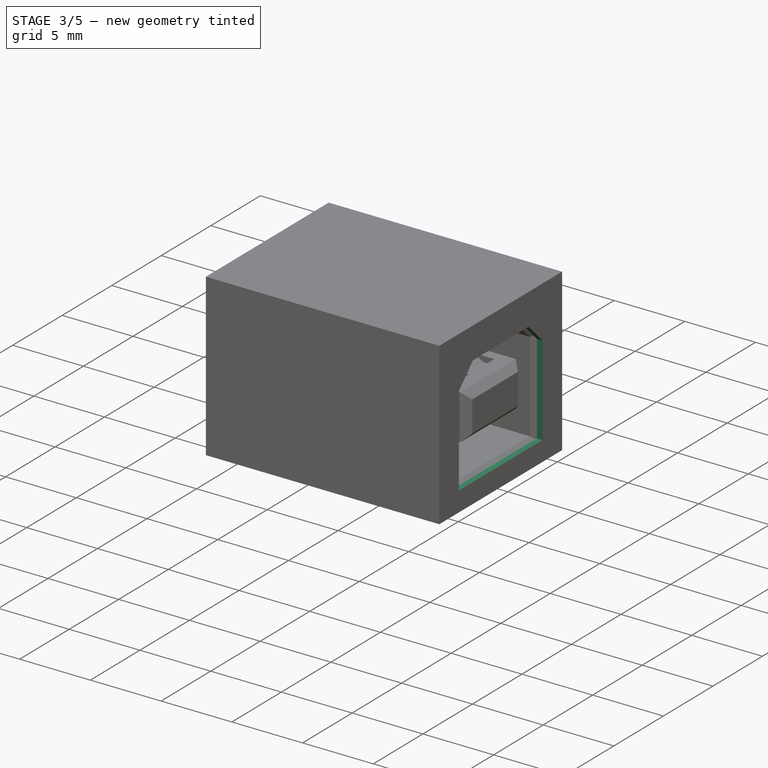
[diagram: stage 3 of 5 — iso view after this stage's code; geometry added in this stage tinted green]
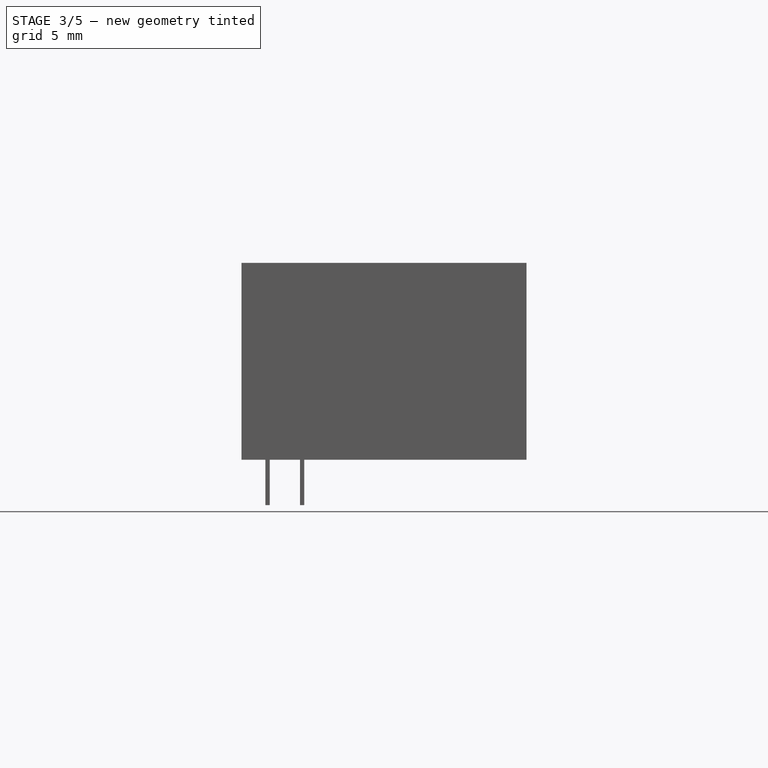
[diagram: stage 3 of 5 — front view after this stage's code; geometry added in this stage tinted green]
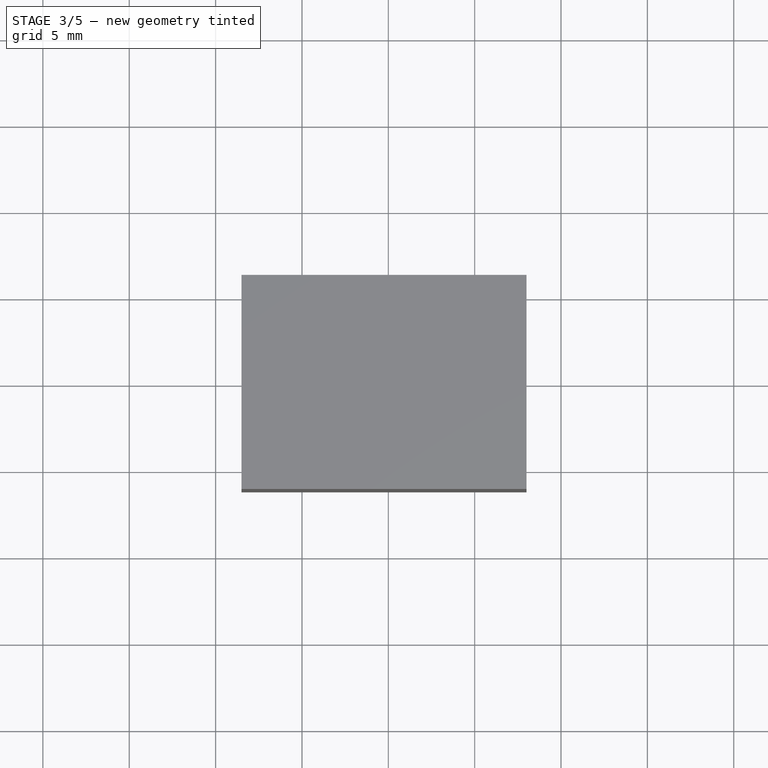
[diagram: stage 3 of 5 — top view after this stage's code; geometry added in this stage tinted green]
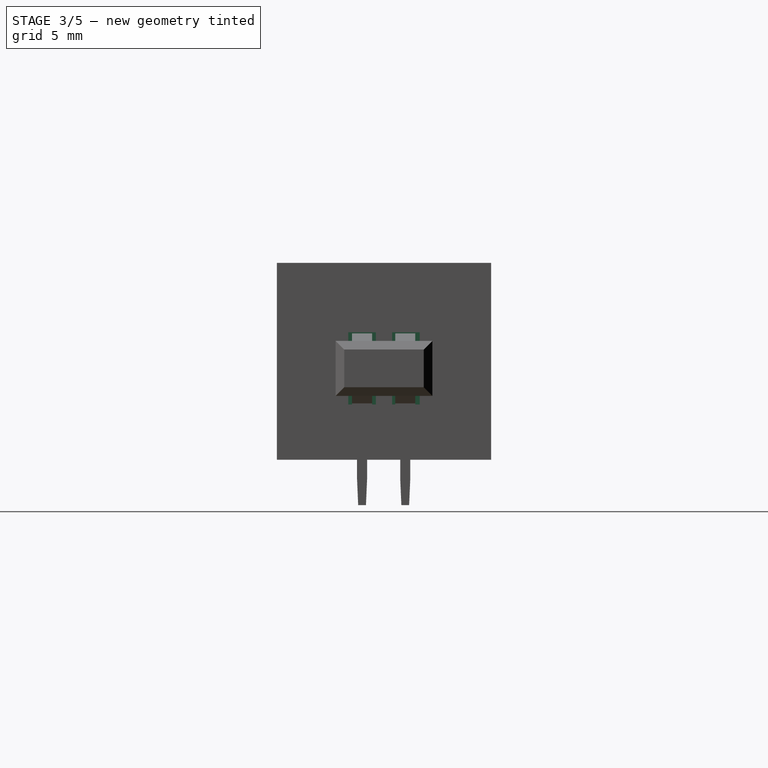
[diagram: stage 3 of 5 — right view after this stage's code; geometry added in this stage tinted green]
FEATURE [Sketcher::SketchObject] Sketch010
  ArcFitTolerance = 0
  AttachmentOffset = pos=(0,0,-13.5) rot=(0,0,1;0rad)
  AttachmentSupport = -> [YZ_Plane001]
  ExternalGeometry = -> [DatumLine001]
  FullyConstrained = true
  MakeInternals = false
  MapMode = 5
  Placement = pos=(-13.5,0,0) rot=(0.57735,0.57735,0.57735;2.0944rad)
  expr: .AttachmentOffset.Base.z = -<<Master>>.h_back
  sketch-geometry (6):
    g0: LineSegment StartX=-5.8 StartY=1.2 StartZ=0 EndX=5.8 EndY=1.2 EndZ=0
    g1: LineSegment StartX=5.8 StartY=1.2 StartZ=0 EndX=5.8 EndY=11.8 EndZ=0
    g2: LineSegment StartX=5.8 StartY=11.8 StartZ=0 EndX=-5.8 EndY=11.8 EndZ=0
    g3: LineSegment StartX=-5.8 StartY=11.8 StartZ=0 EndX=-5.8 EndY=1.2 EndZ=0
    g4: LineSegment [constr] StartX=-5.8 StartY=1.2 StartZ=0 EndX=0 EndY=6.5 EndZ=0
    g5: LineSegment [constr] StartX=0 StartY=6.5 StartZ=0 EndX=5.8 EndY=11.8 EndZ=0
  constraints (16):
    c: Coincident(g0,g1)
    c: Coincident(g1,g2)
    c: Coincident(g2,g3)
    c: Coincident(g3,g0)
    c: Horizontal(g2)
    c: Vertical(g1)
    c: Vertical(g3)
    c: DistanceY(g3,g3) = 10.6
    c: DistanceX(g0,g0) = 11.6
    c: Horizontal(g0)
    c: Coincident(g4,g0)
    c: Coincident(g4,g-3)
    c: Coincident(g5,g4)
    c: Coincident(g5,g1)
    c: Equal(g5,g4)
    c: Parallel(g4,g5)
FEATURE [PartDesign::Pocket] Pocket004
  BaseFeature = -> Pad004
  Direction = (-1,0,0)
  Length = 16.1
  Length2 = 5
  Placement = pos=(0,0,0) rot=(1,1,1;2.0944rad)
  Profile = -> Sketch010
  ReferenceAxis = -> Sketch010 [N_Axis]
  Reversed = true
  Suppressed = false
  Type = 0
  expr: Length = <<Master>>.h_len - 0.4 mm
FEATURE [Sketcher::SketchObject] Sketch011
  ArcFitTolerance = 0
  AttachmentSupport = -> [YZ_Plane001]
  FullyConstrained = true
  MakeInternals = false
  MapMode = 5
  Placement = pos=(0,0,0) rot=(0.57735,0.57735,0.57735;2.0944rad)
  sketch-geometry (6):
    g0: LineSegment StartX=-2.8 StartY=9.98 StartZ=0 EndX=2.8 EndY=9.98 EndZ=0
    g1: LineSegment StartX=2.8 StartY=9.98 StartZ=0 EndX=4.225 EndY=8.555 EndZ=0
    g2: LineSegment StartX=4.225 StartY=8.555 StartZ=0 EndX=4.225 EndY=2.2 EndZ=0
    g3: LineSegment StartX=4.225 StartY=2.2 StartZ=0 EndX=-4.225 EndY=2.2 EndZ=0
    g4: LineSegment StartX=-4.225 StartY=2.2 StartZ=0 EndX=-4.225 EndY=8.555 EndZ=0
    g5: LineSegment StartX=-4.225 StartY=8.555 StartZ=0 EndX=-2.8 EndY=9.98 EndZ=0
  constraints (17):
    c: Horizontal(g0)
    c: Coincident(g0,g1)
    c: Coincident(g1,g2)
    c: Coincident(g2,g3)
    c: Coincident(g3,g4)
    c: Vertical(g4)
    c: Coincident(g4,g5)
    c: Coincident(g5,g0)
    c: Vertical(g2)
    c: Equal(g4,g2)
    c: Equal(g5,g1)
    c: Symmetric(g3,g2,g-2)
    c: Angle(g5) = 0.785398
    c: DistanceX(g0) = 5.6
    c: DistanceY(g-1,g3) = 2.2
    c: DistanceX(g3,g3) = 8.45
    c: DistanceY(g3,g0) = 7.78
FEATURE [PartDesign::Pocket] Pocket005
  BaseFeature = -> Pocket004
  Direction = (-1,0,0)
  Length = 5
  Length2 = 5
  Midplane = true
  Placement = pos=(0,0,0) rot=(1,1,1;2.0944rad)
  Profile = -> Sketch011
  ReferenceAxis = -> Sketch011 [N_Axis]
  Suppressed = false
  Type = 1
FEATURE [Sketcher::SketchObject] Sketch012
  ArcFitTolerance = 0
  AttachmentSupport = -> [XY_Plane001]
  FullyConstrained = true
  MakeInternals = false
  MapMode = 5
  expr: Constraints[10] = <<Master>>.h_back
  sketch-geometry (4):
    g0: LineSegment StartX=-13.5 StartY=5.45 StartZ=0 EndX=-8 EndY=5.45 EndZ=0
    g1: LineSegment StartX=-8 StartY=5.45 StartZ=0 EndX=-8 EndY=-5.45 EndZ=0
    g2: LineSegment StartX=-8 StartY=-5.45 StartZ=0 EndX=-13.5 EndY=-5.45 EndZ=0
    g3: LineSegment StartX=-13.5 StartY=-5.45 StartZ=0 EndX=-13.5 EndY=5.45 EndZ=0
  constraints (11):
    c: Coincident(g0,g1)
    c: Coincident(g1,g2)
    c: Coincident(g2,g3)
    c: Coincident(g3,g0)
    c: Horizontal(g0)
    c: Horizontal(g2)
    c: Vertical(g1)
    c: DistanceX(g0,g0) = 5.5
    c: DistanceY(g3,g3) = 10.9
    c: Symmetric(g0,g2,g-1)
    c: DistanceX(g2,g-1) = 13.5
FEATURE [PartDesign::Pocket] Pocket006
  BaseFeature = -> Pocket005
  Direction = (0,0,-1)
  Length = 2
  Length2 = 5
  Placement = pos=(0,0,0) rot=(1,1,1;2.0944rad)
  Profile = -> Sketch012
  ReferenceAxis = -> Sketch012 [N_Axis]
  Reversed = true
  Suppressed = false
  Type = 0
FEATURE [PartDesign::Pad] Pad005
  BaseFeature = -> Pocket006
  Direction = (1,0,0)
  Length = 0.4
  Length2 = 10
  Placement = pos=(0,0,0) rot=(1,1,1;2.0944rad)
  Profile = -> Sketch009
  ReferenceAxis = -> Sketch009 [N_Axis]
  Refine = true
  Suppressed = false
  Type = 0
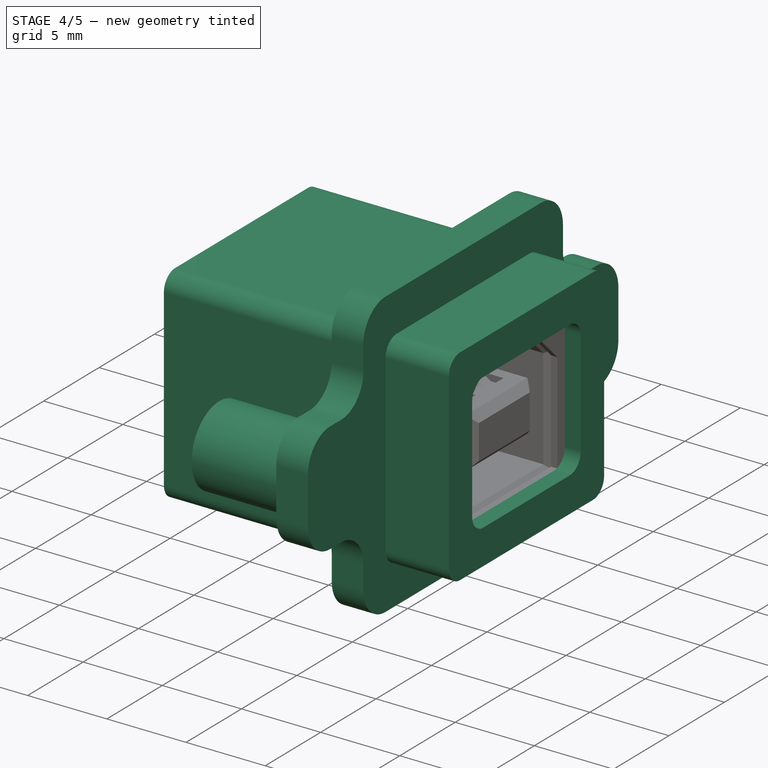
[diagram: stage 4 of 5 — iso view after this stage's code; geometry added in this stage tinted green]
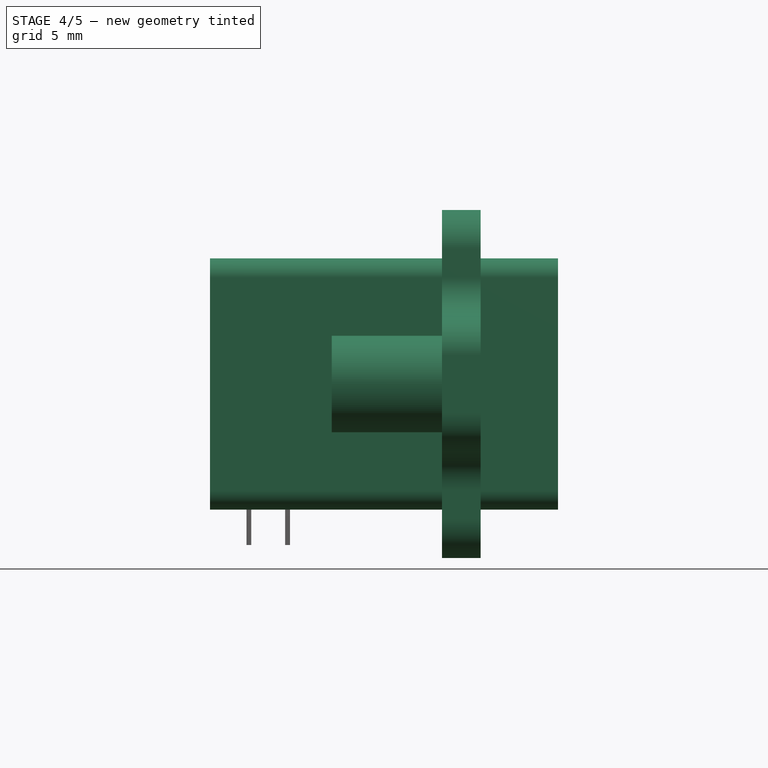
[diagram: stage 4 of 5 — front view after this stage's code; geometry added in this stage tinted green]
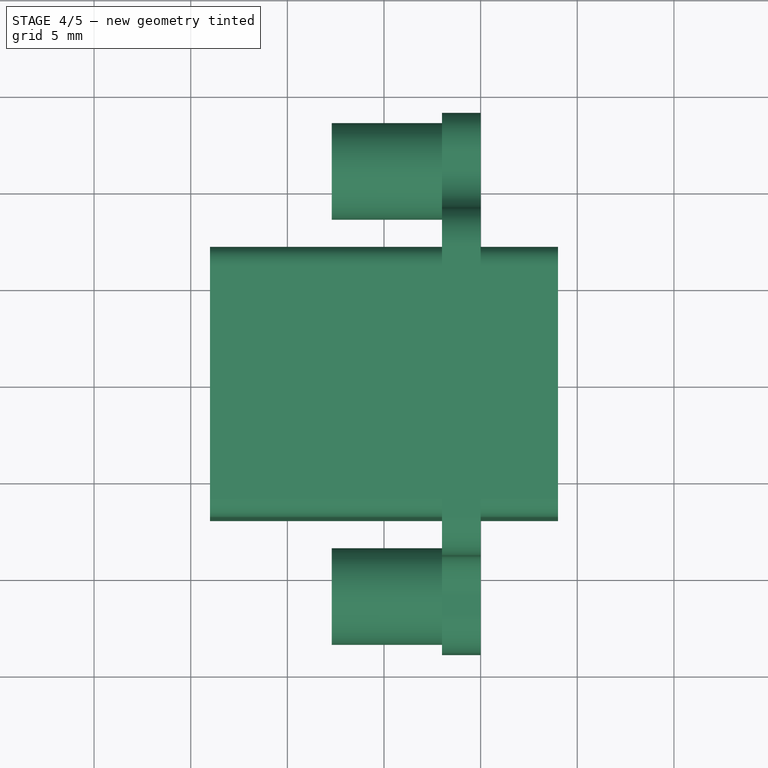
[diagram: stage 4 of 5 — top view after this stage's code; geometry added in this stage tinted green]
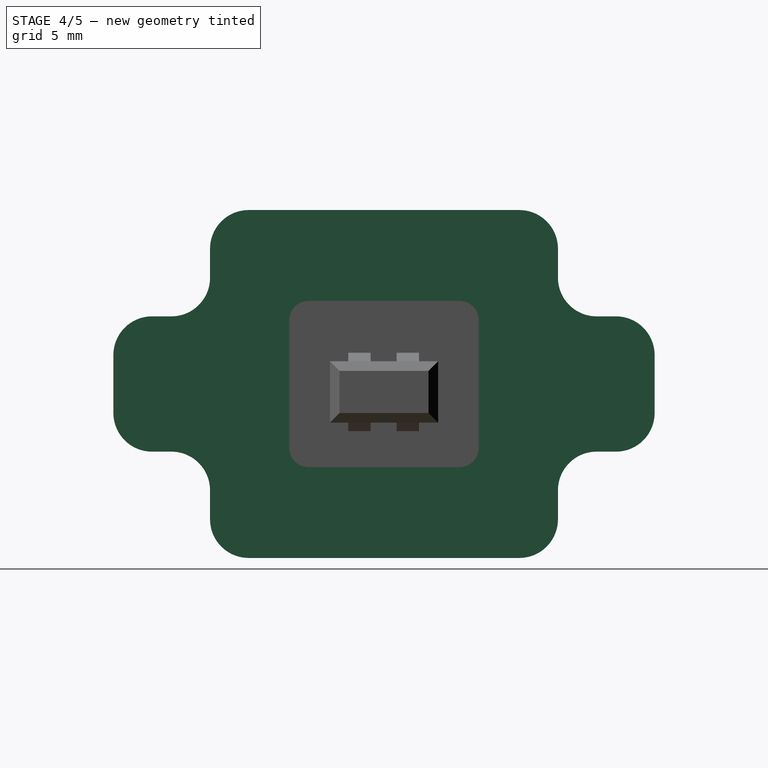
[diagram: stage 4 of 5 — right view after this stage's code; geometry added in this stage tinted green]
FEATURE [Spreadsheet::Sheet] Spreadsheet  label="Master"
  cells = A1='Constants; A2='metal back; B2(metal_back)==12 mm; D2='Length of back section; A3='metal middle; B3(metal_middle)==2 mm; D3='Length of middle section; A4='metal front; B4(metal_front)==4 mm; D4='Length of front section; A5='mnt spacing z/x; B5(mnt_z)==0 mm; C5(mnt_y)==22 mm; D5='Mounting hole vertical (z)/horizontal (y) spacing; A6='housing front; B6(h_front)==3 mm; D6='Origin to housing front; A7='housing back; B7(h_back)==13.5 mm; D7='Origin to housing back; A8='insert front; B8(i_front)==2.6 mm; D8='Origin to insert front; A9='insert back; B9(i_back)==9 mm; D9='Origin to insert back; A10='insert pin box; B10(i_pin_z)==3.18 mm; C10(i_pin_y)==5.6 mm; D10='Plug pin box vertical (z)/horizontal (y) dimensions; A12='Vertical offset constants; A13='center; B13(center)==6.5 mm; D13='Center line position offset; A15='Calculated; A16='metal back total; B16(metal_back_tot)==metal_middle + metal_back; D16='Length from origin to metal back; A17='back plane offset; B17(back_offset)==metal_back_tot; D17='Offset to back of shell; A18='housing length; B18(h_len)==h_front + h_back; D18='Total length of housing; A19='insert length; B19(i_len)==i_front + i_back; D19='Total length of insert; A20='plug center; B20(plug_center)==center - 0.41 mm; D20='Insert opening centerline reference to origin
FEATURE [PartDesign::Line] DatumLine
  AttacherType = Attacher::AttachEngineLine
  AttachmentOffset = pos=(0,6.5,0) rot=(0,0,1;0rad)
  AttachmentSupport = -> [X_Axis]
  Length = 20
  MapMode = 29
  Placement = pos=(0,0,6.5) rot=(0.57735,0.57735,0.57735;2.0944rad)
  ResizeMode = 0
  expr: .AttachmentOffset.Base.y = <<Master>>.center
FEATURE [Sketcher::SketchObject] Sketch
  ArcFitTolerance = 0
  AttachmentSupport = -> [YZ_Plane]
  ExternalGeometry = -> [DatumLine]
  FullyConstrained = true
  MakeInternals = false
  MapMode = 5
  Placement = pos=(0,0,0) rot=(0.57735,0.57735,0.57735;2.0944rad)
  sketch-geometry (38):
    g0: LineSegment StartX=-14 StartY=8 StartZ=0 EndX=-14 EndY=5 EndZ=0
    g1: LineSegment StartX=-12 StartY=3 StartZ=0 EndX=-11 EndY=3 EndZ=0
    g2: LineSegment StartX=-9 StartY=1 StartZ=0 EndX=-9 EndY=-0.5 EndZ=0
    g3: LineSegment StartX=-7 StartY=-2.5 StartZ=0 EndX=7 EndY=-2.5 EndZ=0
    g4: LineSegment StartX=9 StartY=-0.5 StartZ=0 EndX=9 EndY=1 EndZ=0
    g5: LineSegment StartX=11 StartY=3 StartZ=0 EndX=12 EndY=3 EndZ=0
    g6: LineSegment StartX=14 StartY=5 StartZ=0 EndX=14 EndY=8 EndZ=0
    g7: LineSegment StartX=12 StartY=10 StartZ=0 EndX=11 EndY=10 EndZ=0
    g8: LineSegment StartX=9 StartY=12 StartZ=0 EndX=9 EndY=13.5 EndZ=0
    g9: LineSegment StartX=7 StartY=15.5 StartZ=0 EndX=-7 EndY=15.5 EndZ=0
    g10: LineSegment StartX=-9 StartY=13.5 StartZ=0 EndX=-9 EndY=12 EndZ=0
    g11: LineSegment StartX=-11 StartY=10 StartZ=0 EndX=-12 EndY=10 EndZ=0
    g12: LineSegment [constr] StartX=0 StartY=6.5 StartZ=0 EndX=-9 EndY=-2.5 EndZ=0
    g13: LineSegment [constr] StartX=0 StartY=6.5 StartZ=0 EndX=9 EndY=15.5 EndZ=0
    g14: ArcOfCircle CenterX=-7 CenterY=13.5 CenterZ=0 NormalX=0 NormalY=0 NormalZ=1 AngleXU=0 Radius=2 StartAngle=1.5708 EndAngle=3.14159
    g15: GeomPoint [constr] X=-9 Y=15.5 Z=0
    g16: ArcOfCircle CenterX=-11 CenterY=12 CenterZ=0 NormalX=0 NormalY=0 NormalZ=1 AngleXU=0 Radius=2 StartAngle=4.71239 EndAngle=6.28319
    g17: GeomPoint [constr] X=-9 Y=10 Z=0
    g18: ArcOfCircle CenterX=-12 CenterY=8 CenterZ=0 NormalX=0 NormalY=0 NormalZ=1 AngleXU=0 Radius=2 StartAngle=1.5708 EndAngle=3.14159
    g19: GeomPoint [constr] X=-14 Y=10 Z=0
    g20: ArcOfCircle CenterX=-12 CenterY=5 CenterZ=0 NormalX=0 NormalY=0 NormalZ=1 AngleXU=0 Radius=2 StartAngle=3.14159 EndAngle=4.71239
    g21: GeomPoint [constr] X=-14 Y=3 Z=0
    g22: ArcOfCircle CenterX=-11 CenterY=1 CenterZ=0 NormalX=0 NormalY=0 NormalZ=1 AngleXU=0 Radius=2 StartAngle=0 EndAngle=1.5708
    g23: GeomPoint [constr] X=-9 Y=3 Z=0
    g24: ArcOfCircle CenterX=-7 CenterY=-0.5 CenterZ=0 NormalX=0 NormalY=0 NormalZ=1 AngleXU=0 Radius=2 StartAngle=3.14159 EndAngle=4.71239
    g25: GeomPoint [constr] X=-9 Y=-2.5 Z=0
    g26: ArcOfCircle CenterX=7 CenterY=-0.5 CenterZ=0 NormalX=0 NormalY=0 NormalZ=1 AngleXU=0 Radius=2 StartAngle=4.71239 EndAngle=6.28319
    g27: GeomPoint [constr] X=9 Y=-2.5 Z=0
    g28: ArcOfCircle CenterX=11 CenterY=1 CenterZ=0 NormalX=0 NormalY=0 NormalZ=1 AngleXU=0 Radius=2 StartAngle=1.5708 EndAngle=3.14159
    g29: GeomPoint [constr] X=9 Y=3 Z=0
    g30: ArcOfCircle CenterX=12 CenterY=5 CenterZ=0 NormalX=0 NormalY=0 NormalZ=1 AngleXU=0 Radius=2 StartAngle=4.71239 EndAngle=6.28319
    g31: GeomPoint [constr] X=14 Y=3 Z=0
    g32: ArcOfCircle CenterX=12 CenterY=8 CenterZ=0 NormalX=0 NormalY=0 NormalZ=1 AngleXU=0 Radius=2 StartAngle=-3.71276e-11 EndAngle=1.5708
    g33: GeomPoint [constr] X=14 Y=10 Z=0
    g34: ArcOfCircle CenterX=11 CenterY=12 CenterZ=0 NormalX=0 NormalY=0 NormalZ=1 AngleXU=0 Radius=2 StartAngle=3.14159 EndAngle=4.71239
    g35: GeomPoint [constr] X=9 Y=10 Z=0
    g36: ArcOfCircle CenterX=7 CenterY=13.5 CenterZ=0 NormalX=0 NormalY=0 NormalZ=1 AngleXU=0 Radius=2 StartAngle=0 EndAngle=1.5708
    g37: GeomPoint [constr] X=9 Y=15.5 Z=0
  constraints (88):
    c: Vertical(g0)
    c: Vertical(g2)
    c: Horizontal(g9)
    c: Horizontal(g11)
    c: Vertical(g8)
    c: Vertical(g4)
    c: Vertical(g6)
    c: Vertical(g10)
    c: Horizontal(g7)
    c: Horizontal(g5)
    c: Horizontal(g1)
    c: Horizontal(g3)
    c: Coincident(g12,g-3)
    c: Coincident(g12,g25)
    c: Coincident(g13,g12)
    c: Coincident(g13,g37)
    c: Equal(g13,g12)
    c: Parallel(g13,g12)
    c: DistanceY(g25,g15) = 18
    c: DistanceY(g21,g19) = 7
    c: DistanceX(g25,g27) = 18
    c: DistanceX(g21,g31) = 28
    c: PointOnObject(g15,g9)
    c: PointOnObject(g15,g10)
    c: Tangent(g9,g14) = -1.5708
    c: Tangent(g10,g14) = -1.5708
    c: PointOnObject(g17,g10)
    c: PointOnObject(g17,g11)
    c: Tangent(g10,g16) = 1.5708
    c: Tangent(g11,g16) = 1.5708
    c: PointOnObject(g19,g11)
    c: PointOnObject(g19,g0)
    c: Tangent(g11,g18) = -1.5708
    c: Tangent(g0,g18) = -1.5708
    c: PointOnObject(g21,g0)
    c: PointOnObject(g21,g1)
    c: Tangent(g0,g20) = -1.5708
    c: Tangent(g1,g20) = -1.5708
    c: PointOnObject(g23,g1)
    c: PointOnObject(g23,g2)
    c: Tangent(g1,g22) = 1.5708
    c: Tangent(g2,g22) = 1.5708
    c: PointOnObject(g25,g2)
    c: PointOnObject(g25,g3)
    c: Tangent(g2,g24) = -1.5708
    c: Tangent(g3,g24) = -1.5708
    c: PointOnObject(g27,g3)
    c: PointOnObject(g27,g4)
    c: Tangent(g3,g26) = -1.5708
    c: Tangent(g4,g26) = -1.5708
    c: PointOnObject(g29,g5)
    c: PointOnObject(g29,g4)
    c: Tangent(g5,g28) = 1.5708
    c: Tangent(g4,g28) = 1.5708
    c: PointOnObject(g31,g5)
    c: PointOnObject(g31,g6)
    c: Tangent(g5,g30) = -1.5708
    c: Tangent(g6,g30) = -1.5708
    c: PointOnObject(g33,g6)
    c: PointOnObject(g33,g7)
    c: Tangent(g6,g32) = -1.5708
    c: Tangent(g7,g32) = -1.5708
    c: PointOnObject(g35,g7)
    c: PointOnObject(g35,g8)
    c: Tangent(g7,g34) = 1.5708
    c: Tangent(g8,g34) = 1.5708
    c: PointOnObject(g37,g8)
    c: PointOnObject(g37,g9)
    c: Tangent(g8,g36) = -1.5708
    c: Tangent(g9,g36) = -1.5708
    c: Equal(g14,g16)
    c: Equal(g16,g18)
    c: Equal(g18,g20)
    c: Equal(g20,g22)
    c: Equal(g22,g24)
    c: Equal(g24,g26)
    c: Equal(g26,g28)
    c: Equal(g28,g30)
    c: Equal(g30,g36)
    c: Equal(g36,g34)
    c: Equal(g34,g32)
    c: Radius(g32) = 2
    c: Equal(g11,g7)
    c: Equal(g11,g1)
    c: Equal(g7,g5)
    c: Equal(g10,g2)
    c: Equal(g8,g4)
    c: Equal(g0,g6)
FEATURE [PartDesign::Pad] Pad
  Direction = (1,0,0)
  Length = 2
  Length2 = 10
  Placement = pos=(0,0,0) rot=(1,1,1;2.0944rad)
  Profile = -> Sketch
  ReferenceAxis = -> Sketch [N_Axis]
  Reversed = true
  Suppressed = false
  Type = 0
  expr: Length = <<Master>>.metal_middle
FEATURE [Sketcher::SketchObject] Sketch001
  ArcFitTolerance = 0
  AttachmentSupport = -> [YZ_Plane]
  ExternalGeometry = -> [DatumLine]
  FullyConstrained = true
  MakeInternals = false
  MapMode = 5
  Placement = pos=(0,0,0) rot=(0.57735,0.57735,0.57735;2.0944rad)
  sketch-geometry (14):
    g0: LineSegment StartX=-6 StartY=7.4063e-12 StartZ=0 EndX=6 EndY=7.4063e-12 EndZ=0
    g1: LineSegment StartX=7 StartY=1 StartZ=0 EndX=7 EndY=12 EndZ=0
    g2: LineSegment StartX=6 StartY=13 StartZ=0 EndX=-6 EndY=13 EndZ=0
    g3: LineSegment StartX=-7 StartY=12 StartZ=0 EndX=-7 EndY=1 EndZ=0
    g4: LineSegment [constr] StartX=0 StartY=6.5 StartZ=0 EndX=-7 EndY=0 EndZ=0
    g5: LineSegment [constr] StartX=0 StartY=6.5 StartZ=0 EndX=7 EndY=13 EndZ=0
    g6: ArcOfCircle CenterX=-6 CenterY=12 CenterZ=0 NormalX=0 NormalY=0 NormalZ=1 AngleXU=0 Radius=1 StartAngle=1.5708 EndAngle=3.14159
    g7: GeomPoint [constr] X=-7 Y=13 Z=0
    g8: ArcOfCircle CenterX=-6 CenterY=1 CenterZ=0 NormalX=0 NormalY=0 NormalZ=1 AngleXU=0 Radius=1 StartAngle=3.14159 EndAngle=4.71239
    g9: GeomPoint [constr] X=-7 Y=0 Z=0
    g10: ArcOfCircle CenterX=6 CenterY=1 CenterZ=0 NormalX=0 NormalY=0 NormalZ=1 AngleXU=0 Radius=1 StartAngle=4.71239 EndAngle=6.28319
    g11: GeomPoint [constr] X=7 Y=2e-16 Z=0
    g12: ArcOfCircle CenterX=6 CenterY=12 CenterZ=0 NormalX=0 NormalY=0 NormalZ=1 AngleXU=0 Radius=1 StartAngle=6e-16 EndAngle=1.5708
    g13: GeomPoint [constr] X=7 Y=13 Z=0
  constraints (32):
    c: Horizontal(g2)
    c: Vertical(g1)
    c: Vertical(g3)
    c: Horizontal(g0)
    c: Coincident(g4,g-3)
    c: Coincident(g4,g9)
    c: Coincident(g5,g4)
    c: Coincident(g5,g13)
    c: Equal(g5,g4)
    c: Parallel(g5,g4)
    c: DistanceY(g9,g7) = 13
    c: DistanceX(g9,g11) = 14
    c: PointOnObject(g7,g2)
    c: PointOnObject(g7,g3)
    c: Tangent(g2,g6) = -1.5708
    c: Tangent(g3,g6) = -1.5708
    c: PointOnObject(g9,g3)
    c: PointOnObject(g9,g0)
    c: Tangent(g3,g8) = -1.5708
    c: Tangent(g0,g8) = -1.5708
    c: PointOnObject(g11,g0)
    c: PointOnObject(g11,g1)
    c: Tangent(g0,g10) = -1.5708
    c: Tangent(g1,g10) = -1.5708
    c: PointOnObject(g13,g1)
    c: PointOnObject(g13,g2)
    c: Tangent(g1,g12) = -1.5708
    c: Tangent(g2,g12) = -1.5708
    c: Equal(g6,g12)
    c: Equal(g12,g10)
    c: Equal(g10,g8)
    c: Radius(g12) = 1
FEATURE [PartDesign::Pad] Pad001
  BaseFeature = -> Pad
  Direction = (1,0,0)
  Length = 4
  Length2 = 14
  Placement = pos=(0,0,0) rot=(1,1,1;2.0944rad)
  Profile = -> Sketch001
  ReferenceAxis = -> Sketch001 [N_Axis]
  Suppressed = false
  Type = 4
  expr: Length = <<Master>>.metal_front
  expr: Length2 = <<Master>>.metal_back_tot
FEATURE [Sketcher::SketchObject] Sketch002
  ArcFitTolerance = 0
  AttachmentOffset = pos=(0,0,-14) rot=(0,0,1;0rad)
  AttachmentSupport = -> [YZ_Plane]
  ExternalGeometry = -> [DatumLine]
  FullyConstrained = true
  MakeInternals = false
  MapMode = 5
  Placement = pos=(-14,0,0) rot=(0.57735,0.57735,0.57735;2.0944rad)
  expr: .AttachmentOffset.Base.z = -<<Master>>.metal_back_tot
  sketch-geometry (6):
    g0: LineSegment StartX=-6.2 StartY=0.8 StartZ=0 EndX=6.2 EndY=0.8 EndZ=0
    g1: LineSegment StartX=6.2 StartY=0.8 StartZ=0 EndX=6.2 EndY=12.2 EndZ=0
    g2: LineSegment StartX=6.2 StartY=12.2 StartZ=0 EndX=-6.2 EndY=12.2 EndZ=0
    g3: LineSegment StartX=-6.2 StartY=12.2 StartZ=0 EndX=-6.2 EndY=0.8 EndZ=0
    g4: LineSegment [constr] StartX=-6.2 StartY=0.8 StartZ=0 EndX=0 EndY=6.5 EndZ=0
    g5: LineSegment [constr] StartX=0 StartY=6.5 StartZ=0 EndX=6.2 EndY=12.2 EndZ=0
  constraints (16):
    c: Coincident(g0,g1)
    c: Coincident(g1,g2)
    c: Coincident(g2,g3)
    c: Coincident(g3,g0)
    c: Horizontal(g2)
    c: Vertical(g1)
    c: Vertical(g3)
    c: Horizontal(g0)
    c: DistanceY(g3,g3) = 11.4
    c: DistanceX(g0,g0) = 12.4
    c: Coincident(g4,g0)
    c: Coincident(g4,g-3)
    c: Coincident(g5,g4)
    c: Coincident(g5,g1)
    c: Equal(g5,g4)
    c: Parallel(g4,g5)
FEATURE [PartDesign::Pocket] Pocket
  BaseFeature = -> Pad001
  Direction = (-1,0,0)
  Length = 17
  Length2 = 5
  Placement = pos=(0,0,0) rot=(1,1,1;2.0944rad)
  Profile = -> Sketch002
  ReferenceAxis = -> Sketch002 [N_Axis]
  Reversed = true
  Suppressed = false
  Type = 0
FEATURE [Sketcher::SketchObject] Sketch003
  ArcFitTolerance = 0
  AttachmentSupport = -> [YZ_Plane]
  ExternalGeometry = -> [DatumLine]
  FullyConstrained = true
  MakeInternals = false
  MapMode = 5
  Placement = pos=(0,0,0) rot=(0.57735,0.57735,0.57735;2.0944rad)
  sketch-geometry (14):
    g0: LineSegment StartX=-3.9 StartY=10.8 StartZ=0 EndX=3.9 EndY=10.8 EndZ=0
    g1: LineSegment StartX=4.9 StartY=9.8 StartZ=0 EndX=4.9 EndY=3.2 EndZ=0
    g2: LineSegment StartX=3.9 StartY=2.2 StartZ=0 EndX=-3.9 EndY=2.2 EndZ=0
    g3: LineSegment StartX=-4.9 StartY=3.2 StartZ=0 EndX=-4.9 EndY=9.8 EndZ=0
    g4: LineSegment [constr] StartX=-4.9 StartY=2.2 StartZ=0 EndX=0 EndY=6.5 EndZ=0
    g5: LineSegment [constr] StartX=0 StartY=6.5 StartZ=0 EndX=4.9 EndY=10.8 EndZ=0
    g6: ArcOfCircle CenterX=-3.9 CenterY=9.8 CenterZ=0 NormalX=0 NormalY=0 NormalZ=1 AngleXU=0 Radius=1 StartAngle=1.5708 EndAngle=3.14159
    g7: GeomPoint [constr] X=-4.9 Y=10.8 Z=0
    g8: ArcOfCircle CenterX=-3.9 CenterY=3.2 CenterZ=0 NormalX=0 NormalY=0 NormalZ=1 AngleXU=0 Radius=1 StartAngle=3.14159 EndAngle=4.71239
    g9: GeomPoint [constr] X=-4.9 Y=2.2 Z=0
    g10: ArcOfCircle CenterX=3.9 CenterY=3.2 CenterZ=0 NormalX=0 NormalY=0 NormalZ=1 AngleXU=0 Radius=1 StartAngle=4.71239 EndAngle=6.28319
    g11: GeomPoint [constr] X=4.9 Y=2.2 Z=0
    g12: ArcOfCircle CenterX=3.9 CenterY=9.8 CenterZ=0 NormalX=0 NormalY=0 NormalZ=1 AngleXU=0 Radius=1 StartAngle=2e-16 EndAngle=1.5708
    g13: GeomPoint [constr] X=4.9 Y=10.8 Z=0
  constraints (32):
    c: Horizontal(g0)
    c: Vertical(g1)
    c: Vertical(g3)
    c: Horizontal(g2)
    c: DistanceY(g9,g7) = 8.6
    c: DistanceX(g9,g11) = 9.8
    c: Coincident(g4,g9)
    c: Coincident(g4,g-3)
    c: Coincident(g5,g4)
    c: Coincident(g5,g13)
    c: Equal(g5,g4)
    c: Parallel(g5,g4)
    c: PointOnObject(g7,g0)
    c: PointOnObject(g7,g3)
    c: Tangent(g0,g6) = 1.5708
    c: Tangent(g3,g6) = 1.5708
    c: PointOnObject(g9,g3)
    c: PointOnObject(g9,g2)
    c: Tangent(g3,g8) = 1.5708
    c: Tangent(g2,g8) = 1.5708
    c: PointOnObject(g11,g2)
    c: PointOnObject(g11,g1)
    c: Tangent(g2,g10) = 1.5708
    c: Tangent(g1,g10) = 1.5708
    c: PointOnObject(g13,g1)
    c: PointOnObject(g13,g0)
    c: Tangent(g1,g12) = 1.5708
    c: Tangent(g0,g12) = 1.5708
    c: Equal(g6,g8)
    c: Equal(g8,g10)
    c: Equal(g10,g12)
    c: Radius(g12) = 1
FEATURE [PartDesign::Pocket] Pocket001
  BaseFeature = -> Pocket
  Direction = (-1,0,0)
  Length = 5
  Length2 = 5
  Midplane = true
  Placement = pos=(0,0,0) rot=(1,1,1;2.0944rad)
  Profile = -> Sketch003
  ReferenceAxis = -> Sketch003 [N_Axis]
  Suppressed = false
  Type = 1
FEATURE [Sketcher::SketchObject] Sketch005
  ArcFitTolerance = 0
  AttachmentSupport = -> [YZ_Plane]
  ExternalGeometry = -> [DatumLine]
  FullyConstrained = true
  MakeInternals = false
  MapMode = 5
  Placement = pos=(0,0,0) rot=(0.57735,0.57735,0.57735;2.0944rad)
  expr: Constraints[8] = <<Master>>.mnt_y
  sketch-geometry (4):
    g0: Circle CenterX=-11 CenterY=6.5 CenterZ=0 NormalX=0 NormalY=0 NormalZ=1 AngleXU=0 Radius=2.5
    g1: Circle CenterX=11 CenterY=6.5 CenterZ=0 NormalX=0 NormalY=0 NormalZ=1 AngleXU=0 Radius=2.5
    g2: LineSegment [constr] StartX=-11 StartY=6.5 StartZ=0 EndX=0 EndY=6.5 EndZ=0
    g3: LineSegment [constr] StartX=11 StartY=6.5 StartZ=0 EndX=0 EndY=6.5 EndZ=0
  constraints (10):
    c: Coincident(g2,g0)
    c: Horizontal(g2)
    c: Coincident(g3,g1)
    c: Coincident(g3,g2)
    c: Horizontal(g3)
    c: Equal(g2,g3)
    c: Equal(g0,g1)
    c: Radius(g0) = 2.5
    c: DistanceX(g0,g1) = 22
    c: Coincident(g-3,g2)
FEATURE [PartDesign::Pad] Pad002
  BaseFeature = -> Pocket001
  Direction = (1,0,0)
  Length = 7.7
  Length2 = 10
  Placement = pos=(0,0,0) rot=(1,1,1;2.0944rad)
  Profile = -> Sketch005
  ReferenceAxis = -> Sketch005 [N_Axis]
  Reversed = true
  Suppressed = false
  Type = 0
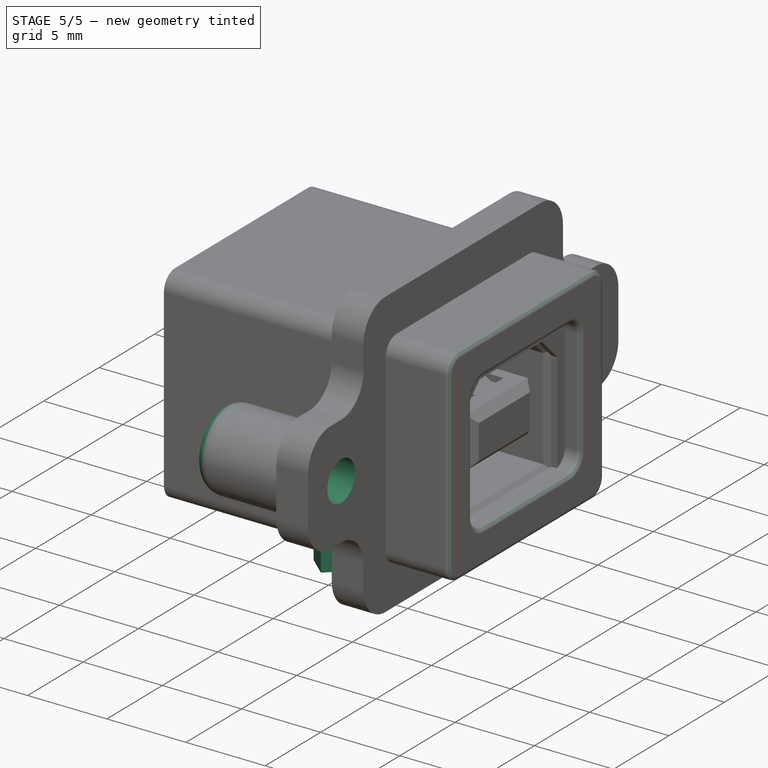
[diagram: stage 5 of 5 — iso view after this stage's code; geometry added in this stage tinted green]
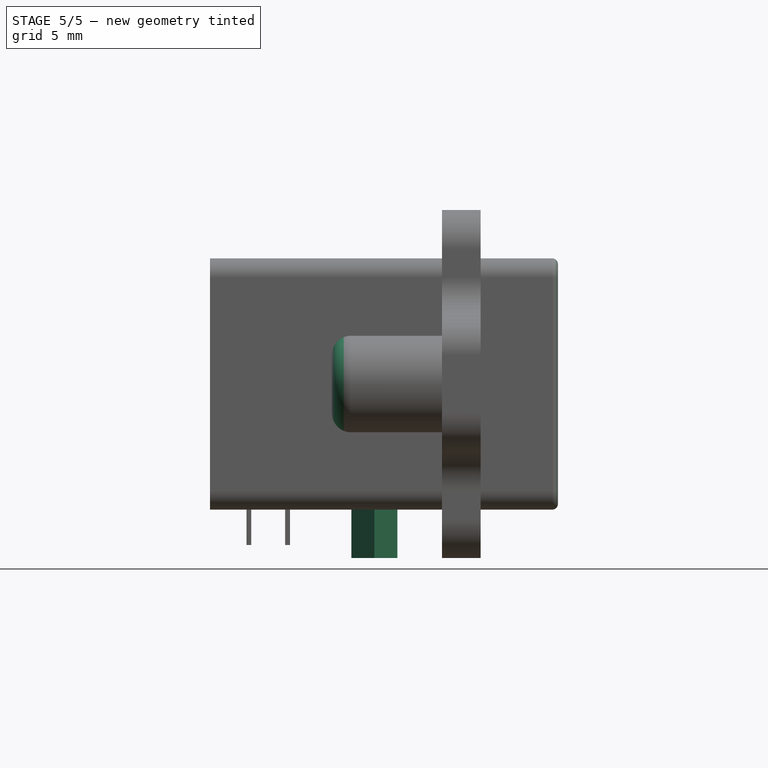
[diagram: stage 5 of 5 — front view after this stage's code; geometry added in this stage tinted green]
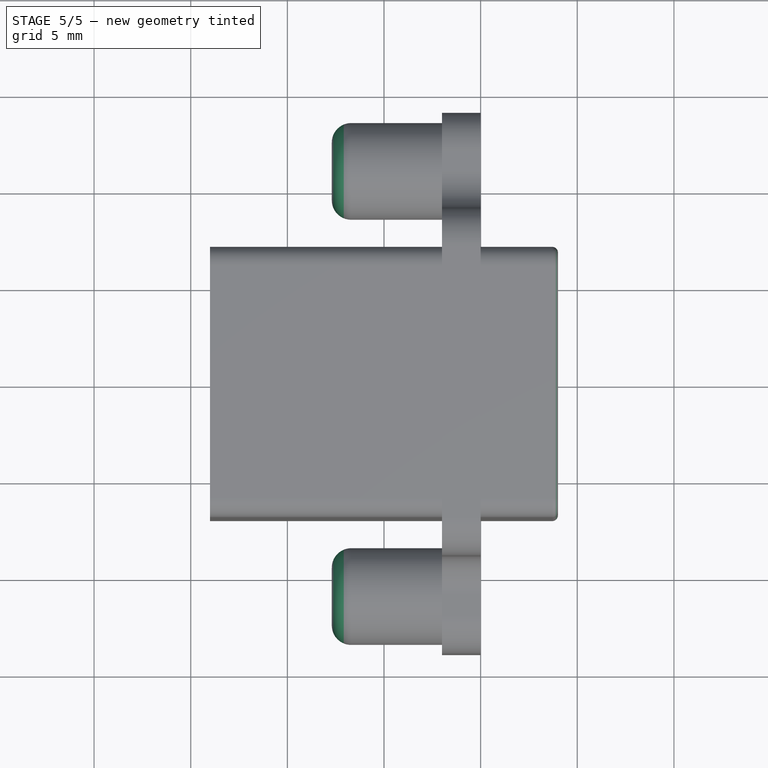
[diagram: stage 5 of 5 — top view after this stage's code; geometry added in this stage tinted green]
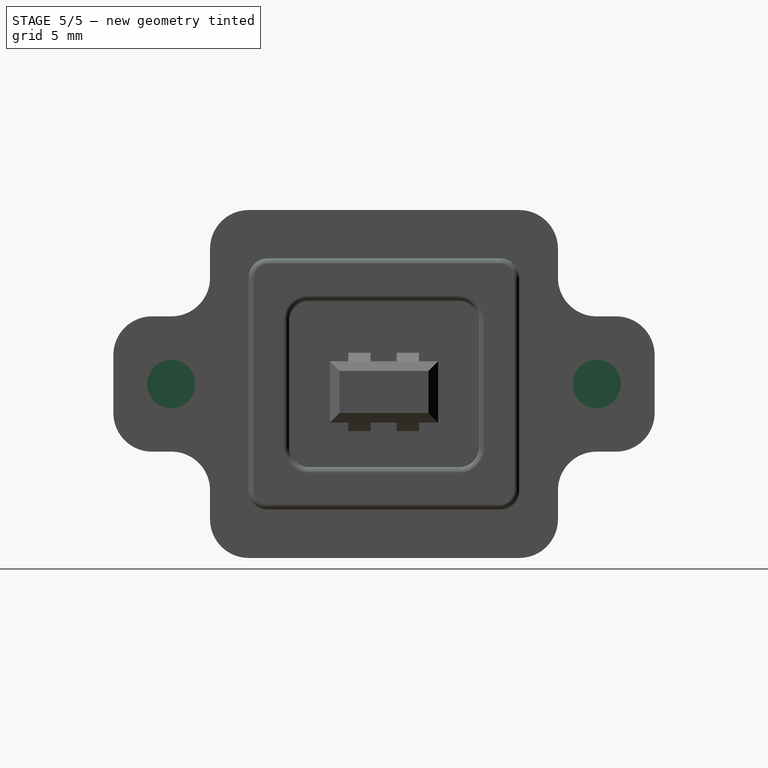
[diagram: stage 5 of 5 — right view after this stage's code; geometry added in this stage tinted green]
FEATURE [Sketcher::SketchObject] Sketch006
  ArcFitTolerance = 0
  AttachmentSupport = -> [YZ_Plane]
  ExternalGeometry = -> [DatumLine]
  FullyConstrained = true
  MakeInternals = false
  MapMode = 5
  Placement = pos=(0,0,0) rot=(0.57735,0.57735,0.57735;2.0944rad)
  expr: Constraints[8] = <<Master>>.mnt_y
  sketch-geometry (4):
    g0: Circle CenterX=-11 CenterY=6.5 CenterZ=0 NormalX=0 NormalY=0 NormalZ=1 AngleXU=0 Radius=1.25
    g1: Circle CenterX=11 CenterY=6.5 CenterZ=0 NormalX=0 NormalY=0 NormalZ=1 AngleXU=0 Radius=1.25
    g2: LineSegment [constr] StartX=-11 StartY=6.5 StartZ=0 EndX=0 EndY=6.5 EndZ=0
    g3: LineSegment [constr] StartX=11 StartY=6.5 StartZ=0 EndX=0 EndY=6.5 EndZ=0
  constraints (10):
    c: Equal(g0,g1)
    c: Coincident(g2,g0)
    c: Horizontal(g2)
    c: Coincident(g3,g1)
    c: Coincident(g3,g2)
    c: Horizontal(g3)
    c: Equal(g3,g2)
    c: Radius(g0) = 1.25
    c: DistanceX(g0,g1) = 22
    c: Coincident(g-3,g2)
FEATURE [PartDesign::Pocket] Pocket002
  BaseFeature = -> Pad002
  Direction = (-1,0,0)
  Length = 5
  Length2 = 5
  Placement = pos=(0,0,0) rot=(1,1,1;2.0944rad)
  Profile = -> Sketch006
  ReferenceAxis = -> Sketch006 [N_Axis]
  Suppressed = false
  Type = 0
FEATURE [Sketcher::SketchObject] Sketch007
  ArcFitTolerance = 0
  AttachmentSupport = -> [XY_Plane]
  FullyConstrained = true
  MakeInternals = false
  MapMode = 5
  sketch-geometry (17):
    g0: LineSegment StartX=-5.5 StartY=-2.88 StartZ=0 EndX=-6.69 EndY=-3.93 EndZ=0
    g1: LineSegment StartX=-6.69 StartY=-3.93 StartZ=0 EndX=-5.5 EndY=-4.98 EndZ=0
    g2: LineSegment StartX=-5.5 StartY=-4.98 StartZ=0 EndX=-4.31 EndY=-3.93 EndZ=0
    g3: LineSegment StartX=-4.31 StartY=-3.93 StartZ=0 EndX=-5.5 EndY=-2.88 EndZ=0
    g4: LineSegment StartX=-5.5 StartY=5.26 StartZ=0 EndX=-6.55 EndY=4.07 EndZ=0
    g5: LineSegment StartX=-6.55 StartY=4.07 StartZ=0 EndX=-5.5 EndY=2.88 EndZ=0
    g6: LineSegment StartX=-5.5 StartY=2.88 StartZ=0 EndX=-4.45 EndY=4.07 EndZ=0
    g7: LineSegment StartX=-4.45 StartY=4.07 StartZ=0 EndX=-5.5 EndY=5.26 EndZ=0
    g8: LineSegment [constr] StartX=-6.69 StartY=-3.93 StartZ=0 EndX=-5.5 EndY=-3.93 EndZ=0
    g9: LineSegment [constr] StartX=-5.5 StartY=-3.93 StartZ=0 EndX=-4.31 EndY=-3.93 EndZ=0
    g10: LineSegment [constr] StartX=-5.5 StartY=-3.93 StartZ=0 EndX=-5.5 EndY=-2.88 EndZ=0
    g11: LineSegment [constr] StartX=-5.5 StartY=-4.98 StartZ=0 EndX=-5.5 EndY=-3.93 EndZ=0
    g12: LineSegment [constr] StartX=-6.55 StartY=4.07 StartZ=0 EndX=-5.5 EndY=4.07 EndZ=0
    g13: LineSegment [constr] StartX=-5.5 StartY=4.07 StartZ=0 EndX=-4.45 EndY=4.07 EndZ=0
    g14: LineSegment [constr] StartX=-5.5 StartY=4.07 StartZ=0 EndX=-5.5 EndY=5.26 EndZ=0
    g15: LineSegment [constr] StartX=-5.5 StartY=4.07 StartZ=0 EndX=-5.5 EndY=2.88 EndZ=0
    g16: LineSegment [constr] StartX=-5.5 StartY=2.88 StartZ=0 EndX=-5.5 EndY=-2.88 EndZ=0
  constraints (43):
    c: Coincident(g0,g1)
    c: Coincident(g1,g2)
    c: Coincident(g2,g3)
    c: Coincident(g3,g0)
    c: Coincident(g4,g5)
    c: Coincident(g5,g6)
    c: Coincident(g6,g7)
    c: Coincident(g7,g4)
    c: Coincident(g8,g0)
    c: Horizontal(g8)
    c: Coincident(g9,g8)
    c: Coincident(g9,g2)
    c: Horizontal(g9)
    c: Coincident(g10,g8)
    c: Coincident(g10,g0)
    c: Vertical(g10)
    c: Coincident(g11,g1)
    c: Coincident(g11,g8)
    c: Vertical(g11)
    c: Equal(g10,g11)
    c: Equal(g8,g9)
    c: Coincident(g12,g4)
    c: Horizontal(g12)
    c: Coincident(g13,g12)
    c: Coincident(g13,g6)
    c: Horizontal(g13)
    c: Coincident(g14,g12)
    c: Coincident(g14,g4)
    c: Coincident(g15,g12)
    c: Coincident(g15,g5)
    c: Vertical(g15)
    c: Vertical(g14)
    c: Equal(g14,g15)
    c: Equal(g12,g13)
    c: Equal(g10,g12)
    c: Equal(g8,g14)
    c: DistanceY(g1,g0) = 2.1
    c: DistanceY(g5,g4) = 2.38
    c: Coincident(g16,g5)
    c: Coincident(g16,g0)
    c: Symmetric(g0,g5,g-1)
    c: DistanceY(g0,g4) = 8
    c: DistanceX(g1,g-1) = 5.5
FEATURE [PartDesign::Pad] Pad003
  BaseFeature = -> Pocket002
  Direction = (0,0,1)
  Length = 2.5
  Length2 = 10
  Placement = pos=(0,0,0) rot=(1,1,1;2.0944rad)
  Profile = -> Sketch007
  ReferenceAxis = -> Sketch007 [N_Axis]
  Reversed = true
  Suppressed = false
  Type = 0
FEATURE [Sketcher::SketchObject] Sketch008
  ArcFitTolerance = 0
  AttachmentSupport = -> [XY_Plane]
  FullyConstrained = true
  MakeInternals = false
  MapMode = 5
  expr: Constraints[18] = <<Master>>.metal_back_tot
  sketch-geometry (8):
    g0: LineSegment StartX=-9 StartY=5.45 StartZ=0 EndX=-14 EndY=5.45 EndZ=0
    g1: LineSegment StartX=-14 StartY=5.45 StartZ=0 EndX=-14 EndY=-5.45 EndZ=0
    g2: LineSegment StartX=-14 StartY=-5.45 StartZ=0 EndX=-9 EndY=-5.45 EndZ=0
    g3: LineSegment StartX=-8 StartY=-4.45 StartZ=0 EndX=-8 EndY=4.45 EndZ=0
    g4: ArcOfCircle CenterX=-9 CenterY=4.45 CenterZ=0 NormalX=0 NormalY=0 NormalZ=1 AngleXU=0 Radius=1 StartAngle=0 EndAngle=1.5708
    g5: GeomPoint [constr] X=-8 Y=5.45 Z=0
    g6: ArcOfCircle CenterX=-9 CenterY=-4.45 CenterZ=0 NormalX=0 NormalY=0 NormalZ=1 AngleXU=0 Radius=1 StartAngle=4.71239 EndAngle=6.28319
    g7: GeomPoint [constr] X=-8 Y=-5.45 Z=0
  constraints (19):
    c: Coincident(g0,g1)
    c: Coincident(g1,g2)
    c: Horizontal(g0)
    c: Vertical(g3)
    c: Horizontal(g2)
    c: DistanceX(g2,g7) = 6
    c: DistanceY(g1,g1) = 10.9
    c: PointOnObject(g5,g0)
    c: PointOnObject(g5,g3)
    c: Tangent(g0,g4) = -1.5708
    c: Tangent(g3,g4) = -1.5708
    c: PointOnObject(g7,g3)
    c: PointOnObject(g7,g2)
    c: Tangent(g3,g6) = -1.5708
    c: Tangent(g2,g6) = -1.5708
    c: Equal(g6,g4)
    c: Radius(g4) = 1
    c: Symmetric(g0,g1,g-1)
    c: DistanceX(g1,g-1) = 14
FEATURE [PartDesign::Pocket] Pocket003
  BaseFeature = -> Pad003
  Direction = (0,0,-1)
  Length = 1
  Length2 = 5
  Placement = pos=(0,0,0) rot=(1,1,1;2.0944rad)
  Profile = -> Sketch008
  ReferenceAxis = -> Sketch008 [N_Axis]
  Refine = true
  Reversed = true
  Suppressed = false
  Type = 0
FEATURE [PartDesign::Fillet] Fillet
  Base = -> Pocket003 [Edge116,Edge84]
  BaseFeature = -> Pocket003
  Placement = pos=(0,0,0) rot=(1,1,1;2.0944rad)
  Radius = 1
  SupportTransform = false
  Suppressed = false
  UseAllEdges = false
FEATURE [PartDesign::Fillet] Fillet001
  Base = -> Fillet [Edge174,Edge196]
  BaseFeature = -> Fillet
  Placement = pos=(0,0,0) rot=(1,1,1;2.0944rad)
  Radius = 0.3
  SupportTransform = false
  Suppressed = false
  UseAllEdges = false
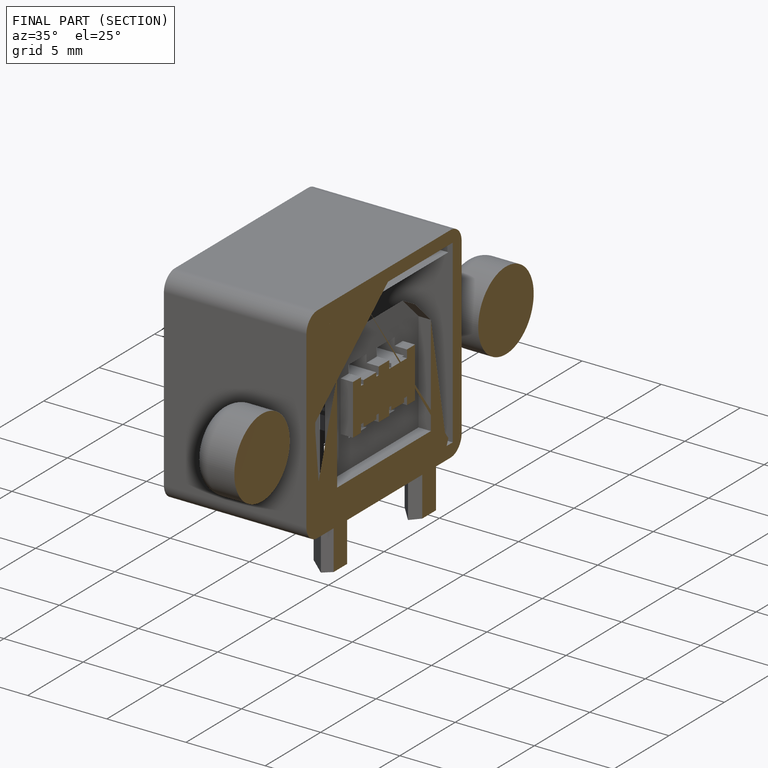
[diagram: finished part — half-section view (interior)]
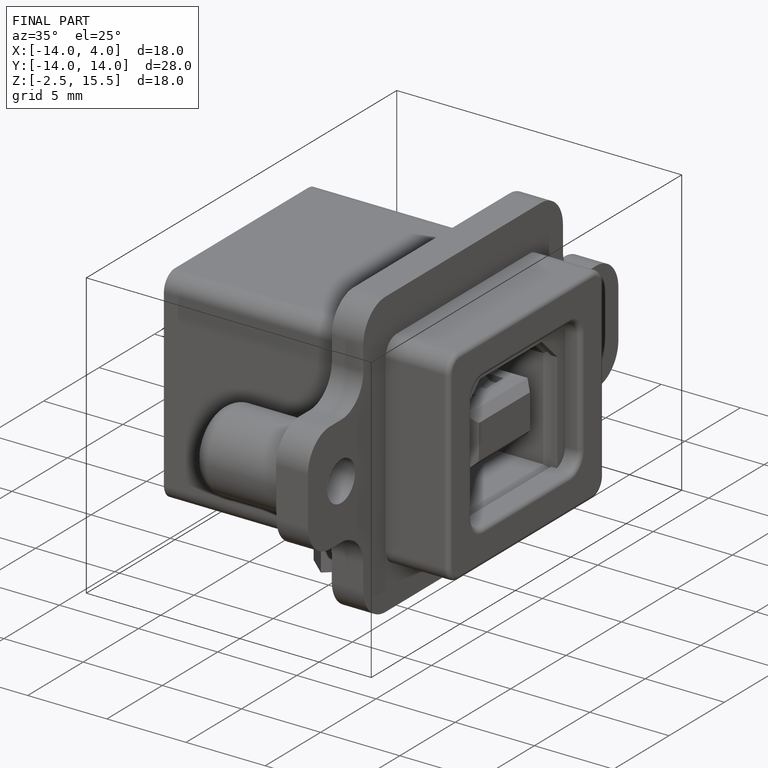
[diagram: finished part — iso view with bounding-box wireframe]
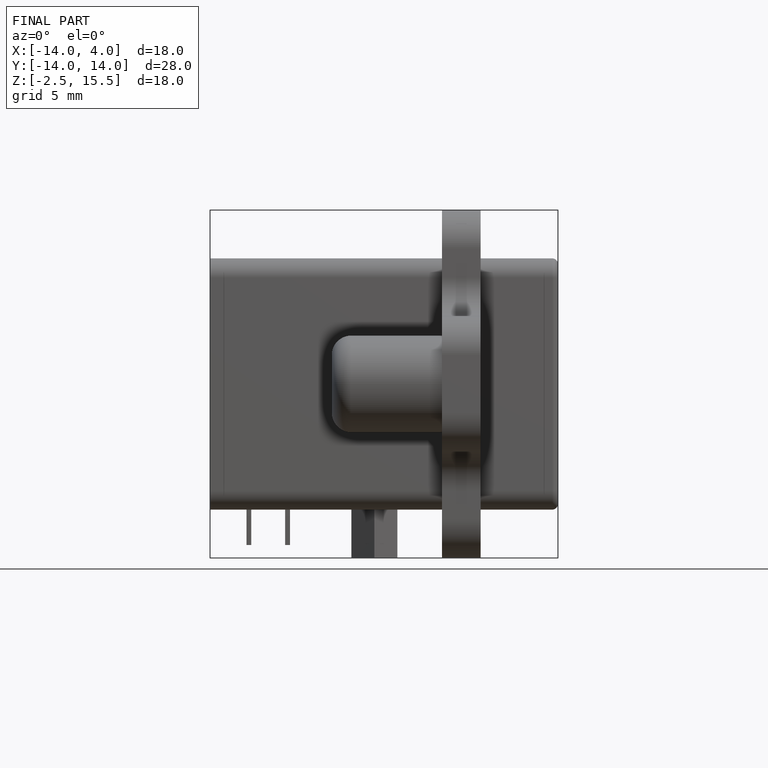
[diagram: finished part — front view with bounding-box wireframe]
